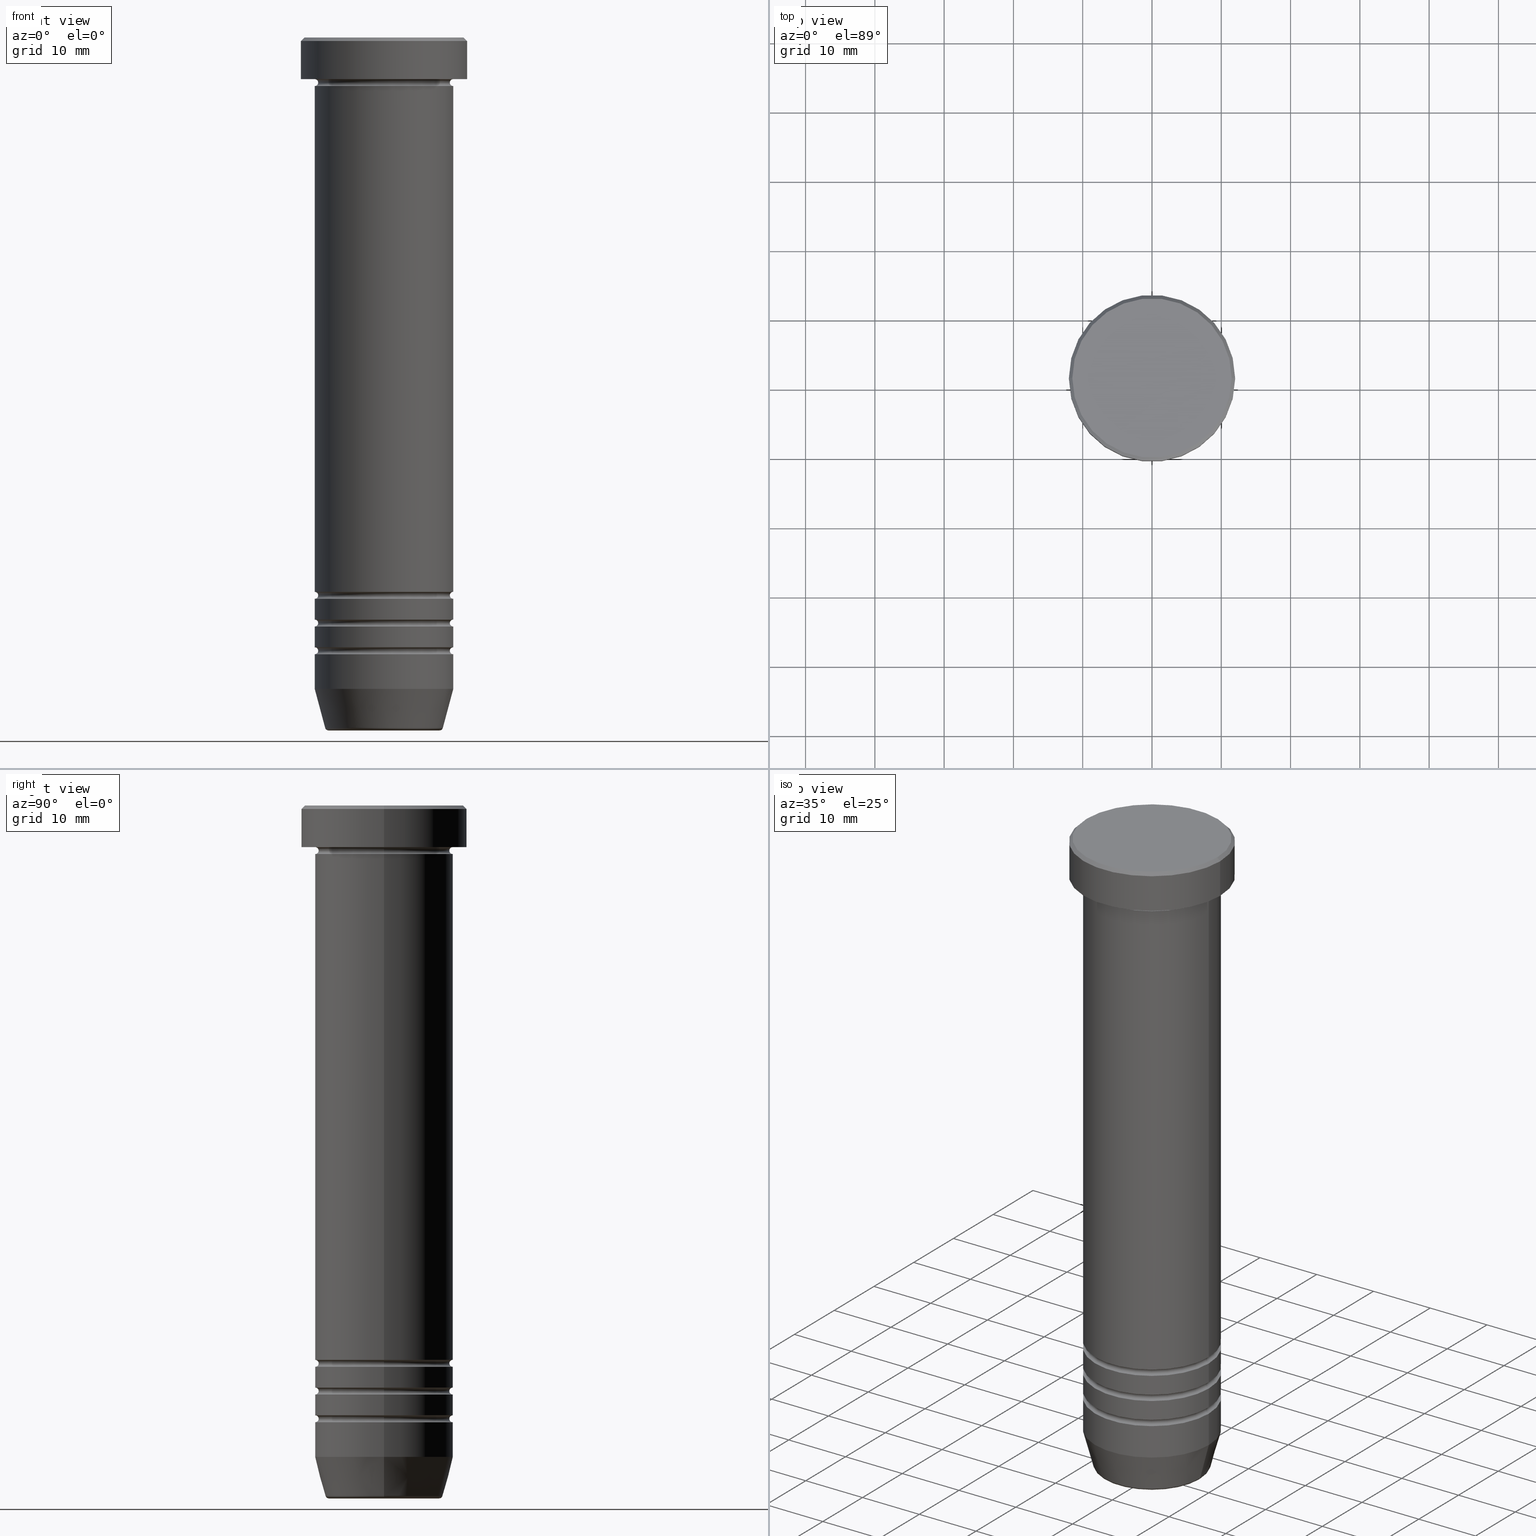
[diagram: canonical four-view strip — front | top / right | iso, engineering-drawing reading convention]
A machine part, canonical four-view strip (front | top / right | iso — engineering-drawing reading convention). The complete STEP part file that produces these views, byte-faithful:
ISO-10303-21;
HEADER;
FILE_DESCRIPTION (( 'STEP AP203' ),
    '1' );
FILE_NAME ('818b.STEP',
    '2024-01-02T21:48:29',
    ( '' ),
    ( '' ),
    'SwSTEP 2.0',
    'SolidWorks 2019',
    '' );
FILE_SCHEMA (( 'CONFIG_CONTROL_DESIGN' ));
ENDSEC;

DATA;
#1 = DIRECTION ( 'NONE',  ( 1.000000000000000000, 0.000000000000000000, 0.000000000000000000 ) ) ;
#2 = DIRECTION ( 'NONE',  ( -0.000000000000000000, -0.000000000000000000, 1.000000000000000000 ) ) ;
#3 = ORIENTED_EDGE ( 'NONE', *, *, #563, .F. ) ;
#4 = EDGE_CURVE ( 'NONE', #180, #565, #630, .T. ) ;
#5 = DIRECTION ( 'NONE',  ( 0.000000000000000000, 0.000000000000000000, -1.000000000000000000 ) ) ;
#6 = CYLINDRICAL_SURFACE ( 'NONE', #26, 9.999999999999996447 ) ;
#7 = ORIENTED_EDGE ( 'NONE', *, *, #59, .T. ) ;
#8 = CARTESIAN_POINT ( 'NONE',  ( -9.499999999999994671, 1.194030629168669075E-15, -84.49999999999998579 ) ) ;
#9 = AXIS2_PLACEMENT_3D ( 'NONE', #521, #704, #691 ) ;
#10 = AXIS2_PLACEMENT_3D ( 'NONE', #286, #756, #22 ) ;
#11 = EDGE_CURVE ( 'NONE', #565, #881, #824, .T. ) ;
#12 = VERTEX_POINT ( 'NONE', #38 ) ;
#13 = CARTESIAN_POINT ( 'NONE',  ( 0.000000000000000000, 0.000000000000000000, -88.50000000000000000 ) ) ;
#14 = FACE_OUTER_BOUND ( 'NONE', #949, .T. ) ;
#15 = ORIENTED_EDGE ( 'NONE', *, *, #147, .T. ) ;
#16 = DIRECTION ( 'NONE',  ( 0.000000000000000000, 0.000000000000000000, -1.000000000000000000 ) ) ;
#17 = CYLINDRICAL_SURFACE ( 'NONE', #67, 9.999999999999996447 ) ;
#18 = PRODUCT_DEFINITION_SHAPE ( 'NONE', 'NONE',  #63 ) ;
#19 = DIRECTION ( 'NONE',  ( 1.000000000000000000, 0.000000000000000000, 0.000000000000000000 ) ) ;
#20 = ADVANCED_FACE ( 'NONE', ( #210 ), #161, .F. ) ;
#21 = ORIENTED_EDGE ( 'NONE', *, *, #350, .T. ) ;
#22 = DIRECTION ( 'NONE',  ( 1.000000000000000000, 0.000000000000000000, 0.000000000000000000 ) ) ;
#23 = EDGE_CURVE ( 'NONE', #913, #881, #1009, .T. ) ;
#24 = DIRECTION ( 'NONE',  ( 1.000000000000000000, 0.000000000000000000, 0.000000000000000000 ) ) ;
#25 = TOROIDAL_SURFACE ( 'NONE', #9, 9.999999999999994671, 0.5000000000000000000 ) ;
#26 = AXIS2_PLACEMENT_3D ( 'NONE', #768, #591, #90 ) ;
#27 = CIRCLE ( 'NONE', #141, 9.999999999999992895 ) ;
#28 = LOCAL_TIME ( 22, 48, 29.00000000000000000, #429 ) ;
#29 = DIRECTION ( 'NONE',  ( -1.224646799147353207E-16, 1.000000000000000000, 0.000000000000000000 ) ) ;
#30 = ORIENTED_EDGE ( 'NONE', *, *, #923, .T. ) ;
#31 = ORIENTED_EDGE ( 'NONE', *, *, #1051, .F. ) ;
#32 = MANIFOLD_SOLID_BREP ( 'Zaoblit5', #54 ) ;
#33 = CIRCLE ( 'NONE', #337, 12.00000000000000000 ) ;
#34 = DIRECTION ( 'NONE',  ( 0.000000000000000000, 0.000000000000000000, -1.000000000000000000 ) ) ;
#35 = DIRECTION ( 'NONE',  ( 1.000000000000000000, 0.000000000000000000, 0.000000000000000000 ) ) ;
#36 = ORIENTED_EDGE ( 'NONE', *, *, #177, .F. ) ;
#37 = DIRECTION ( 'NONE',  ( -0.000000000000000000, -0.000000000000000000, 1.000000000000000000 ) ) ;
#38 = CARTESIAN_POINT ( 'NONE',  ( -10.00000000000000000, 1.224646799147353256E-15, -81.00000000000000000 ) ) ;
#39 = LINE ( 'NONE', #469, #281 ) ;
#40 = DIRECTION ( 'NONE',  ( 1.000000000000000000, 0.000000000000000000, 0.000000000000000000 ) ) ;
#41 = ORIENTED_EDGE ( 'NONE', *, *, #56, .T. ) ;
#42 = CARTESIAN_POINT ( 'NONE',  ( 10.00000000000000000, 1.224646799147353256E-15, -6.000000000000000000 ) ) ;
#43 = ORIENTED_EDGE ( 'NONE', *, *, #889, .T. ) ;
#44 = CARTESIAN_POINT ( 'NONE',  ( 9.999999999999994671, 1.224646799147352665E-15, -80.50000000000000000 ) ) ;
#45 = DIRECTION ( 'NONE',  ( 1.000000000000000000, 0.000000000000000000, 0.000000000000000000 ) ) ;
#46 = FACE_OUTER_BOUND ( 'NONE', #137, .T. ) ;
#47 = ORIENTED_EDGE ( 'NONE', *, *, #273, .T. ) ;
#48 = AXIS2_PLACEMENT_3D ( 'NONE', #1020, #848, #297 ) ;
#49 = AXIS2_PLACEMENT_3D ( 'NONE', #673, #832, #436 ) ;
#50 = EDGE_CURVE ( 'NONE', #490, #734, #143, .T. ) ;
#51 = VERTEX_POINT ( 'NONE', #656 ) ;
#52 = LOCAL_TIME ( 22, 48, 29.00000000000000000, #831 ) ;
#53 = DIRECTION ( 'NONE',  ( 1.000000000000000000, 0.000000000000000000, 0.000000000000000000 ) ) ;
#54 = CLOSED_SHELL ( 'NONE', ( #1061, #239, #639, #20, #764, #743, #522, #185, #280, #547, #396, #78, #512, #308, #814, #958, #212, #643, #229, #663, #345, #225, #1031, #593, #474, #331 ) ) ;
#55 = DIRECTION ( 'NONE',  ( 0.000000000000000000, 0.000000000000000000, -1.000000000000000000 ) ) ;
#56 = EDGE_CURVE ( 'NONE', #254, #840, #708, .T. ) ;
#57 = DIRECTION ( 'NONE',  ( 1.000000000000000000, 0.000000000000000000, 0.000000000000000000 ) ) ;
#58 = CARTESIAN_POINT ( 'NONE',  ( 9.999999999999996447, 0.000000000000000000, 0.000000000000000000 ) ) ;
#59 = EDGE_CURVE ( 'NONE', #75, #478, #295, .T. ) ;
#60 = CARTESIAN_POINT ( 'NONE',  ( 10.00000000000000000, 0.000000000000000000, -84.99999999999998579 ) ) ;
#61 = ORIENTED_EDGE ( 'NONE', *, *, #889, .F. ) ;
#62 = DIRECTION ( 'NONE',  ( 1.000000000000000000, 0.000000000000000000, 0.000000000000000000 ) ) ;
#63 = PRODUCT_DEFINITION ( 'NEZN�M�', '', #233, #479 ) ;
#64 = FACE_OUTER_BOUND ( 'NONE', #245, .T. ) ;
#65 = CARTESIAN_POINT ( 'NONE',  ( 10.00000000000000000, 0.000000000000000000, 0.000000000000000000 ) ) ;
#66 = EDGE_CURVE ( 'NONE', #749, #873, #283, .T. ) ;
#67 = AXIS2_PLACEMENT_3D ( 'NONE', #194, #375, #24 ) ;
#68 = TOROIDAL_SURFACE ( 'NONE', #553, 9.999999999999994671, 0.5000000000000000000 ) ;
#69 = CIRCLE ( 'NONE', #488, 9.999999999999992895 ) ;
#70 = DIRECTION ( 'NONE',  ( 1.000000000000000000, 0.000000000000000000, 0.000000000000000000 ) ) ;
#71 = LINE ( 'NONE', #151, #82 ) ;
#72 = ORIENTED_EDGE ( 'NONE', *, *, #585, .T. ) ;
#73 = PERSON_AND_ORGANIZATION ( #978, #300 ) ;
#74 = EDGE_CURVE ( 'NONE', #254, #478, #404, .T. ) ;
#75 = VERTEX_POINT ( 'NONE', #231 ) ;
#76 = CARTESIAN_POINT ( 'NONE',  ( 10.00000000000000000, 0.000000000000000000, -6.999999999999999112 ) ) ;
#77 = AXIS2_PLACEMENT_3D ( 'NONE', #909, #89, #819 ) ;
#78 = ADVANCED_FACE ( 'NONE', ( #217 ), #715, .T. ) ;
#79 = ORIENTED_EDGE ( 'NONE', *, *, #874, .F. ) ;
#80 = AXIS2_PLACEMENT_3D ( 'NONE', #782, #204, #35 ) ;
#81 = TOROIDAL_SURFACE ( 'NONE', #49, 9.999999999999994671, 0.5000000000000000000 ) ;
#82 = VECTOR ( 'NONE', #646, 1000.000000000000000 ) ;
#83 = DIRECTION ( 'NONE',  ( 1.000000000000000000, 0.000000000000000000, 0.000000000000000000 ) ) ;
#84 = AXIS2_PLACEMENT_3D ( 'NONE', #789, #302, #951 ) ;
#85 = DIRECTION ( 'NONE',  ( 1.000000000000000000, 0.000000000000000000, 0.000000000000000000 ) ) ;
#86 = EDGE_CURVE ( 'NONE', #674, #839, #33, .T. ) ;
#87 = ORIENTED_EDGE ( 'NONE', *, *, #288, .T. ) ;
#88 = PERSON_AND_ORGANIZATION_ROLE ( 'classification_officer' ) ;
#89 = DIRECTION ( 'NONE',  ( 0.000000000000000000, 0.000000000000000000, -1.000000000000000000 ) ) ;
#90 = DIRECTION ( 'NONE',  ( 1.000000000000000000, 0.000000000000000000, 0.000000000000000000 ) ) ;
#91 = EDGE_LOOP ( 'NONE', ( #1048, #592, #633, #240 ) ) ;
#92 = ORIENTED_EDGE ( 'NONE', *, *, #350, .F. ) ;
#93 = PERSON_AND_ORGANIZATION ( #978, #300 ) ;
#94 = EDGE_CURVE ( 'NONE', #387, #873, #635, .T. ) ;
#95 = DIRECTION ( 'NONE',  ( 1.000000000000000000, 0.000000000000000000, 0.000000000000000000 ) ) ;
#96 = EDGE_LOOP ( 'NONE', ( #568, #47, #982, #613 ) ) ;
#97 = ORIENTED_EDGE ( 'NONE', *, *, #835, .T. ) ;
#98 = DIRECTION ( 'NONE',  ( 1.000000000000000000, 0.000000000000000000, 0.000000000000000000 ) ) ;
#99 = CIRCLE ( 'NONE', #550, 10.00000000000000000 ) ;
#100 = AXIS2_PLACEMENT_3D ( 'NONE', #1026, #710, #627 ) ;
#101 = APPROVAL_PERSON_ORGANIZATION ( #816, #369, #899 ) ;
#102 = DIRECTION ( 'NONE',  ( -1.000000000000000000, 0.000000000000000000, 0.000000000000000000 ) ) ;
#103 = ORIENTED_EDGE ( 'NONE', *, *, #580, .T. ) ;
#104 = CARTESIAN_POINT ( 'NONE',  ( 0.000000000000000000, 0.000000000000000000, 0.000000000000000000 ) ) ;
#105 = DIRECTION ( 'NONE',  ( 1.000000000000000000, 0.000000000000000000, 0.000000000000000000 ) ) ;
#106 = ORIENTED_EDGE ( 'NONE', *, *, #131, .T. ) ;
#107 = DIRECTION ( 'NONE',  ( -1.000000000000000000, -1.224646799147353454E-16, 0.000000000000000000 ) ) ;
#108 = EDGE_LOOP ( 'NONE', ( #166, #122, #830, #383 ) ) ;
#109 = DIRECTION ( 'NONE',  ( 0.000000000000000000, 0.000000000000000000, -1.000000000000000000 ) ) ;
#110 = DIRECTION ( 'NONE',  ( 1.000000000000000000, 0.000000000000000000, 0.000000000000000000 ) ) ;
#111 = CARTESIAN_POINT ( 'NONE',  ( 0.000000000000000000, 0.000000000000000000, -99.99999999999998579 ) ) ;
#112 = ORIENTED_EDGE ( 'NONE', *, *, #50, .F. ) ;
#113 = CARTESIAN_POINT ( 'NONE',  ( 9.499999999999994671, 0.000000000000000000, -88.50000000000000000 ) ) ;
#114 = CIRCLE ( 'NONE', #205, 12.00000000000000000 ) ;
#115 = DIRECTION ( 'NONE',  ( -0.000000000000000000, -0.000000000000000000, 1.000000000000000000 ) ) ;
#116 = VECTOR ( 'NONE', #802, 1000.000000000000000 ) ;
#117 = VECTOR ( 'NONE', #501, 1000.000000000000000 ) ;
#118 = AXIS2_PLACEMENT_3D ( 'NONE', #678, #919, #997 ) ;
#119 = ORIENTED_EDGE ( 'NONE', *, *, #320, .F. ) ;
#120 = DIRECTION ( 'NONE',  ( 0.000000000000000000, 0.000000000000000000, -1.000000000000000000 ) ) ;
#121 = ORIENTED_EDGE ( 'NONE', *, *, #74, .F. ) ;
#122 = ORIENTED_EDGE ( 'NONE', *, *, #1054, .T. ) ;
#123 = EDGE_CURVE ( 'NONE', #1043, #179, #313, .T. ) ;
#124 = DIRECTION ( 'NONE',  ( -1.000000000000000000, 0.000000000000000000, 0.000000000000000000 ) ) ;
#125 = DIRECTION ( 'NONE',  ( 0.000000000000000000, 0.000000000000000000, -1.000000000000000000 ) ) ;
#126 = CARTESIAN_POINT ( 'NONE',  ( 0.000000000000000000, 0.000000000000000000, -84.49999999999998579 ) ) ;
#127 = EDGE_LOOP ( 'NONE', ( #249, #906, #43, #596 ) ) ;
#128 = DIRECTION ( 'NONE',  ( -0.000000000000000000, -0.000000000000000000, 1.000000000000000000 ) ) ;
#129 = CARTESIAN_POINT ( 'NONE',  ( 8.008641351423779753, 0.000000000000000000, -99.49999999999998579 ) ) ;
#130 = DIRECTION ( 'NONE',  ( 1.000000000000000000, 0.000000000000000000, 0.000000000000000000 ) ) ;
#131 = EDGE_CURVE ( 'NONE', #986, #626, #305, .T. ) ;
#132 = DIRECTION ( 'NONE',  ( -0.000000000000000000, -1.000000000000000000, -0.000000000000000000 ) ) ;
#133 = ORIENTED_EDGE ( 'NONE', *, *, #966, .T. ) ;
#134 = CARTESIAN_POINT ( 'NONE',  ( 8.392304845413260495, 0.000000000000000000, -99.99999999999998579 ) ) ;
#135 = CARTESIAN_POINT ( 'NONE',  ( -9.999999999999992895, 1.224646799147352665E-15, -88.00000000000000000 ) ) ;
#136 = DIRECTION ( 'NONE',  ( 1.000000000000000000, 0.000000000000000000, 0.000000000000000000 ) ) ;
#137 = EDGE_LOOP ( 'NONE', ( #312, #431, #647, #165 ) ) ;
#138 = AXIS2_PLACEMENT_3D ( 'NONE', #905, #144, #1042 ) ;
#139 = DIRECTION ( 'NONE',  ( -0.000000000000000000, -0.000000000000000000, 1.000000000000000000 ) ) ;
#140 = EDGE_CURVE ( 'NONE', #179, #290, #736, .T. ) ;
#141 = AXIS2_PLACEMENT_3D ( 'NONE', #276, #994, #520 ) ;
#142 = CARTESIAN_POINT ( 'NONE',  ( 0.000000000000000000, 0.000000000000000000, -25.00000000000000000 ) ) ;
#143 = CIRCLE ( 'NONE', #728, 10.00000000000000000 ) ;
#144 = DIRECTION ( 'NONE',  ( -0.000000000000000000, -0.000000000000000000, 1.000000000000000000 ) ) ;
#145 = VERTEX_POINT ( 'NONE', #875 ) ;
#146 = DIRECTION ( 'NONE',  ( 1.000000000000000000, 0.000000000000000000, 0.000000000000000000 ) ) ;
#147 = EDGE_CURVE ( 'NONE', #525, #51, #739, .T. ) ;
#148 = DIRECTION ( 'NONE',  ( -0.000000000000000000, -0.000000000000000000, 1.000000000000000000 ) ) ;
#149 = CARTESIAN_POINT ( 'NONE',  ( 9.999999999999994671, 0.000000000000000000, -84.49999999999998579 ) ) ;
#150 = EDGE_LOOP ( 'NONE', ( #567, #198, #356, #666 ) ) ;
#151 = CARTESIAN_POINT ( 'NONE',  ( -9.999999999999996447, 1.224646799147352862E-15, 0.000000000000000000 ) ) ;
#152 = DIRECTION ( 'NONE',  ( 1.000000000000000000, 0.000000000000000000, 0.000000000000000000 ) ) ;
#153 = EDGE_LOOP ( 'NONE', ( #3, #451, #933, #460 ) ) ;
#154 = TOROIDAL_SURFACE ( 'NONE', #987, 9.999999999999994671, 0.5000000000000000000 ) ;
#155 = TOROIDAL_SURFACE ( 'NONE', #263, 10.00000000000000000, 0.5000000000000000000 ) ;
#156 = APPLICATION_PROTOCOL_DEFINITION ( 'international standard', 'config_control_design', 1994, #900 ) ;
#157 = ORIENTED_EDGE ( 'NONE', *, *, #936, .T. ) ;
#158 =( GEOMETRIC_REPRESENTATION_CONTEXT ( 3 ) GLOBAL_UNCERTAINTY_ASSIGNED_CONTEXT ( ( #722 ) ) GLOBAL_UNIT_ASSIGNED_CONTEXT ( ( #811, #483, #573 ) ) REPRESENTATION_CONTEXT ( 'NONE', 'WORKASPACE' ) );
#159 = VERTEX_POINT ( 'NONE', #76 ) ;
#160 = MECHANICAL_CONTEXT ( 'NONE', #900, 'mechanical' ) ;
#161 = TOROIDAL_SURFACE ( 'NONE', #605, 9.999999999999994671, 0.5000000000000000000 ) ;
#162 = EDGE_CURVE ( 'NONE', #290, #972, #1037, .T. ) ;
#163 = ORIENTED_EDGE ( 'NONE', *, *, #822, .T. ) ;
#164 = PERSON_AND_ORGANIZATION_ROLE ( 'creator' ) ;
#165 = ORIENTED_EDGE ( 'NONE', *, *, #787, .F. ) ;
#166 = ORIENTED_EDGE ( 'NONE', *, *, #931, .T. ) ;
#167 = CARTESIAN_POINT ( 'NONE',  ( 0.000000000000000000, 0.000000000000000000, -6.000000000000000000 ) ) ;
#168 = VECTOR ( 'NONE', #548, 1000.000000000000000 ) ;
#169 = CARTESIAN_POINT ( 'NONE',  ( 0.000000000000000000, 0.000000000000000000, -6.499999999999999112 ) ) ;
#170 = AXIS2_PLACEMENT_3D ( 'NONE', #405, #307, #136 ) ;
#171 = ORIENTED_EDGE ( 'NONE', *, *, #195, .T. ) ;
#172 = CIRCLE ( 'NONE', #778, 0.5000000000000004441 ) ;
#173 = COORDINATED_UNIVERSAL_TIME_OFFSET ( 1, 0, .AHEAD. ) ;
#174 = DIRECTION ( 'NONE',  ( -0.000000000000000000, -0.000000000000000000, 1.000000000000000000 ) ) ;
#175 = FACE_OUTER_BOUND ( 'NONE', #893, .T. ) ;
#176 = ORIENTED_EDGE ( 'NONE', *, *, #874, .T. ) ;
#177 = EDGE_CURVE ( 'NONE', #839, #674, #114, .T. ) ;
#178 = DIRECTION ( 'NONE',  ( 0.000000000000000000, 0.000000000000000000, -1.000000000000000000 ) ) ;
#179 = VERTEX_POINT ( 'NONE', #984 ) ;
#180 = VERTEX_POINT ( 'NONE', #584 ) ;
#181 = CARTESIAN_POINT ( 'NONE',  ( 0.000000000000000000, 0.000000000000000000, -6.500000000000000888 ) ) ;
#182 = DIRECTION ( 'NONE',  ( -0.000000000000000000, -0.000000000000000000, 1.000000000000000000 ) ) ;
#183 = EDGE_LOOP ( 'NONE', ( #784, #262, #619, #92 ) ) ;
#184 = FACE_OUTER_BOUND ( 'NONE', #777, .T. ) ;
#185 = ADVANCED_FACE ( 'NONE', ( #251 ), #1058, .T. ) ;
#186 = CIRCLE ( 'NONE', #793, 9.499999999999994671 ) ;
#187 = AXIS2_PLACEMENT_3D ( 'NONE', #676, #916, #95 ) ;
#188 = CONICAL_SURFACE ( 'NONE', #588, 8.392304845413260495, 0.2617993877991502960 ) ;
#189 = ORIENTED_EDGE ( 'NONE', *, *, #177, .T. ) ;
#190 = CARTESIAN_POINT ( 'NONE',  ( 0.000000000000000000, 0.000000000000000000, -99.49999999999998579 ) ) ;
#191 = ORIENTED_EDGE ( 'NONE', *, *, #732, .F. ) ;
#192 = PRODUCT ( '818b', '818b', '', ( #160 ) ) ;
#193 = CARTESIAN_POINT ( 'NONE',  ( 10.00000000000000000, 0.000000000000000000, -6.499999999999999112 ) ) ;
#194 = CARTESIAN_POINT ( 'NONE',  ( 0.000000000000000000, 0.000000000000000000, 0.000000000000000000 ) ) ;
#195 = EDGE_CURVE ( 'NONE', #734, #490, #358, .T. ) ;
#196 = DIRECTION ( 'NONE',  ( 1.000000000000000000, 0.000000000000000000, 0.000000000000000000 ) ) ;
#197 = ORIENTED_EDGE ( 'NONE', *, *, #732, .T. ) ;
#198 = ORIENTED_EDGE ( 'NONE', *, *, #563, .T. ) ;
#199 = LINE ( 'NONE', #624, #552 ) ;
#200 = EDGE_CURVE ( 'NONE', #840, #939, #99, .T. ) ;
#201 = DIRECTION ( 'NONE',  ( 0.000000000000000000, 0.000000000000000000, -1.000000000000000000 ) ) ;
#202 = ORIENTED_EDGE ( 'NONE', *, *, #59, .F. ) ;
#203 = DIRECTION ( 'NONE',  ( -0.000000000000000000, -0.000000000000000000, 1.000000000000000000 ) ) ;
#204 = DIRECTION ( 'NONE',  ( -0.000000000000000000, -0.000000000000000000, 1.000000000000000000 ) ) ;
#205 = AXIS2_PLACEMENT_3D ( 'NONE', #904, #813, #257 ) ;
#206 = AXIS2_PLACEMENT_3D ( 'NONE', #771, #532, #34 ) ;
#207 = CIRCLE ( 'NONE', #910, 0.5000000000000004441 ) ;
#208 = CARTESIAN_POINT ( 'NONE',  ( 0.000000000000000000, 0.000000000000000000, -6.500000000000000888 ) ) ;
#209 = ORIENTED_EDGE ( 'NONE', *, *, #752, .F. ) ;
#210 = FACE_OUTER_BOUND ( 'NONE', #91, .T. ) ;
#211 = CARTESIAN_POINT ( 'NONE',  ( 0.000000000000000000, 0.000000000000000000, -80.00000000000000000 ) ) ;
#212 = ADVANCED_FACE ( 'NONE', ( #497 ), #664, .F. ) ;
#213 = CARTESIAN_POINT ( 'NONE',  ( -10.00000000000000000, 1.224646799147353256E-15, -94.00000000000000000 ) ) ;
#214 = ORIENTED_EDGE ( 'NONE', *, *, #371, .F. ) ;
#215 = CARTESIAN_POINT ( 'NONE',  ( -9.999999999999998224, 1.224646799147353059E-15, -83.99999999999998579 ) ) ;
#216 = EDGE_LOOP ( 'NONE', ( #267, #87, #398, #902 ) ) ;
#217 = FACE_OUTER_BOUND ( 'NONE', #714, .T. ) ;
#218 = DIRECTION ( 'NONE',  ( 1.000000000000000000, 0.000000000000000000, 0.000000000000000000 ) ) ;
#219 = FACE_OUTER_BOUND ( 'NONE', #1059, .T. ) ;
#220 = ORIENTED_EDGE ( 'NONE', *, *, #259, .F. ) ;
#221 = EDGE_LOOP ( 'NONE', ( #851, #72, #641, #852 ) ) ;
#222 = CARTESIAN_POINT ( 'NONE',  ( 11.50000000000000178, 1.408343819019456373E-15, 0.000000000000000000 ) ) ;
#223 = DIRECTION ( 'NONE',  ( 1.000000000000000000, 0.000000000000000000, 0.000000000000000000 ) ) ;
#224 = DIRECTION ( 'NONE',  ( -0.000000000000000000, -0.000000000000000000, 1.000000000000000000 ) ) ;
#225 = ADVANCED_FACE ( 'NONE', ( #504 ), #684, .F. ) ;
#226 = EDGE_LOOP ( 'NONE', ( #843, #409, #779, #408 ) ) ;
#227 = CIRCLE ( 'NONE', #724, 12.00000000000000000 ) ;
#228 = TOROIDAL_SURFACE ( 'NONE', #640, 8.008641351423779753, 0.5000000000000000000 ) ;
#229 = ADVANCED_FACE ( 'NONE', ( #828 ), #935, .T. ) ;
#230 = AXIS2_PLACEMENT_3D ( 'NONE', #850, #1013, #19 ) ;
#231 = CARTESIAN_POINT ( 'NONE',  ( 8.491604264568310967, 0.000000000000000000, -99.62940952255125637 ) ) ;
#232 = AXIS2_PLACEMENT_3D ( 'NONE', #237, #703, #45 ) ;
#233 = PRODUCT_DEFINITION_FORMATION_WITH_SPECIFIED_SOURCE ( 'LIBOVOLN�', '', #192, .NOT_KNOWN. ) ;
#234 = CARTESIAN_POINT ( 'NONE',  ( -9.999999999999994671, 0.000000000000000000, -88.50000000000000000 ) ) ;
#235 = CARTESIAN_POINT ( 'NONE',  ( 0.000000000000000000, 10.00000000000000000, -25.00000000000000000 ) ) ;
#236 = ORIENTED_EDGE ( 'NONE', *, *, #443, .T. ) ;
#237 = CARTESIAN_POINT ( 'NONE',  ( 0.000000000000000000, 0.000000000000000000, -88.50000000000000000 ) ) ;
#238 = CARTESIAN_POINT ( 'NONE',  ( 0.000000000000000000, 0.000000000000000000, 0.000000000000000000 ) ) ;
#239 = ADVANCED_FACE ( 'NONE', ( #46 ), #154, .F. ) ;
#240 = ORIENTED_EDGE ( 'NONE', *, *, #441, .F. ) ;
#241 = EDGE_CURVE ( 'NONE', #626, #437, #1021, .T. ) ;
#242 = CALENDAR_DATE ( 2024, 2, 1 ) ;
#243 = AXIS2_PLACEMENT_3D ( 'NONE', #293, #528, #1017 ) ;
#244 = AXIS2_PLACEMENT_3D ( 'NONE', #268, #861, #841 ) ;
#245 = EDGE_LOOP ( 'NONE', ( #31, #677, #530, #541 ) ) ;
#246 = PERSON_AND_ORGANIZATION ( #978, #300 ) ;
#247 = EDGE_CURVE ( 'NONE', #652, #458, #942, .T. ) ;
#248 = ORIENTED_EDGE ( 'NONE', *, *, #270, .F. ) ;
#249 = ORIENTED_EDGE ( 'NONE', *, *, #200, .T. ) ;
#250 = EDGE_CURVE ( 'NONE', #693, #12, #199, .T. ) ;
#251 = FACE_OUTER_BOUND ( 'NONE', #842, .T. ) ;
#252 = EDGE_CURVE ( 'NONE', #12, #565, #959, .T. ) ;
#253 = FACE_OUTER_BOUND ( 'NONE', #226, .T. ) ;
#254 = VERTEX_POINT ( 'NONE', #213 ) ;
#255 = PERSON_AND_ORGANIZATION_ROLE ( 'design_owner' ) ;
#256 = CC_DESIGN_PERSON_AND_ORGANIZATION_ASSIGNMENT ( #413, #164, ( #63 ) ) ;
#257 = DIRECTION ( 'NONE',  ( 1.000000000000000000, 0.000000000000000000, 0.000000000000000000 ) ) ;
#258 = AXIS2_PLACEMENT_3D ( 'NONE', #480, #1029, #800 ) ;
#259 = EDGE_CURVE ( 'NONE', #812, #159, #471, .T. ) ;
#260 = CARTESIAN_POINT ( 'NONE',  ( 0.000000000000000000, 0.000000000000000000, -80.50000000000000000 ) ) ;
#261 = CIRCLE ( 'NONE', #277, 9.999999999999992895 ) ;
#262 = ORIENTED_EDGE ( 'NONE', *, *, #11, .T. ) ;
#263 = AXIS2_PLACEMENT_3D ( 'NONE', #181, #609, #124 ) ;
#264 = CIRCLE ( 'NONE', #1041, 0.5000000000000004441 ) ;
#265 = VECTOR ( 'NONE', #1018, 1000.000000000000000 ) ;
#266 = DIRECTION ( 'NONE',  ( 1.000000000000000000, 0.000000000000000000, 0.000000000000000000 ) ) ;
#267 = ORIENTED_EDGE ( 'NONE', *, *, #250, .F. ) ;
#268 = CARTESIAN_POINT ( 'NONE',  ( -9.999999999999994671, 0.000000000000000000, -84.49999999999998579 ) ) ;
#269 = FACE_OUTER_BOUND ( 'NONE', #150, .T. ) ;
#270 = EDGE_CURVE ( 'NONE', #939, #840, #599, .T. ) ;
#271 = ORIENTED_EDGE ( 'NONE', *, *, #371, .T. ) ;
#272 = DIRECTION ( 'NONE',  ( -1.000000000000000000, 0.000000000000000000, 0.000000000000000000 ) ) ;
#273 = EDGE_CURVE ( 'NONE', #574, #812, #772, .T. ) ;
#274 = CARTESIAN_POINT ( 'NONE',  ( 0.000000000000000000, 0.000000000000000000, -99.99999999999998579 ) ) ;
#275 = EDGE_LOOP ( 'NONE', ( #607, #523, #157, #833 ) ) ;
#276 = CARTESIAN_POINT ( 'NONE',  ( 0.000000000000000000, 0.000000000000000000, -80.00000000000000000 ) ) ;
#277 = AXIS2_PLACEMENT_3D ( 'NONE', #477, #470, #648 ) ;
#278 = DIRECTION ( 'NONE',  ( -0.000000000000000000, -1.000000000000000000, -0.000000000000000000 ) ) ;
#279 = VECTOR ( 'NONE', #926, 1000.000000000000000 ) ;
#280 = ADVANCED_FACE ( 'NONE', ( #767 ), #17, .T. ) ;
#281 = VECTOR ( 'NONE', #310, 1000.000000000000000 ) ;
#282 = ORIENTED_EDGE ( 'NONE', *, *, #11, .F. ) ;
#283 = CIRCLE ( 'NONE', #422, 0.5000000000000004441 ) ;
#284 = FACE_OUTER_BOUND ( 'NONE', #1028, .T. ) ;
#285 = ORIENTED_EDGE ( 'NONE', *, *, #66, .T. ) ;
#286 = CARTESIAN_POINT ( 'NONE',  ( 0.000000000000000000, 0.000000000000000000, 0.000000000000000000 ) ) ;
#287 = CARTESIAN_POINT ( 'NONE',  ( 0.000000000000000000, 0.000000000000000000, -80.50000000000000000 ) ) ;
#288 = EDGE_CURVE ( 'NONE', #693, #180, #669, .T. ) ;
#289 = DIRECTION ( 'NONE',  ( -0.000000000000000000, -0.000000000000000000, 1.000000000000000000 ) ) ;
#290 = VERTEX_POINT ( 'NONE', #941 ) ;
#291 = VERTEX_POINT ( 'NONE', #540 ) ;
#292 = CARTESIAN_POINT ( 'NONE',  ( -10.00000000000000000, 1.224646799147353256E-15, -6.499999999999999112 ) ) ;
#293 = CARTESIAN_POINT ( 'NONE',  ( 0.000000000000000000, 0.000000000000000000, -81.00000000000000000 ) ) ;
#294 = CARTESIAN_POINT ( 'NONE',  ( -10.00000000000000000, 0.000000000000000000, -6.500000000000000888 ) ) ;
#295 = LINE ( 'NONE', #134, #744 ) ;
#296 = DIRECTION ( 'NONE',  ( -0.000000000000000000, -0.000000000000000000, 1.000000000000000000 ) ) ;
#297 = DIRECTION ( 'NONE',  ( 1.000000000000000000, 0.000000000000000000, 0.000000000000000000 ) ) ;
#298 = CIRCLE ( 'NONE', #907, 0.5000000000000004441 ) ;
#299 = AXIS2_PLACEMENT_3D ( 'NONE', #748, #2, #872 ) ;
#300 = ORGANIZATION ( 'NEUR�EN�', 'NEUR�EN�', '' ) ;
#301 = DIRECTION ( 'NONE',  ( -1.000000000000000000, 0.000000000000000000, -0.000000000000000000 ) ) ;
#302 = DIRECTION ( 'NONE',  ( -0.000000000000000000, -0.000000000000000000, 1.000000000000000000 ) ) ;
#303 = DIRECTION ( 'NONE',  ( -0.000000000000000000, -1.000000000000000000, -0.000000000000000000 ) ) ;
#304 = DIRECTION ( 'NONE',  ( -0.000000000000000000, -0.000000000000000000, 1.000000000000000000 ) ) ;
#305 = LINE ( 'NONE', #955, #355 ) ;
#306 = CYLINDRICAL_SURFACE ( 'NONE', #473, 12.00000000000000000 ) ;
#307 = DIRECTION ( 'NONE',  ( -0.000000000000000000, -0.000000000000000000, 1.000000000000000000 ) ) ;
#308 = ADVANCED_FACE ( 'NONE', ( #219 ), #867, .T. ) ;
#309 = ORIENTED_EDGE ( 'NONE', *, *, #435, .T. ) ;
#310 = DIRECTION ( 'NONE',  ( -0.000000000000000000, -0.000000000000000000, 1.000000000000000000 ) ) ;
#311 = DIRECTION ( 'NONE',  ( -1.000000000000000000, 1.224646799147353454E-16, 0.000000000000000000 ) ) ;
#312 = ORIENTED_EDGE ( 'NONE', *, *, #844, .F. ) ;
#313 = CIRCLE ( 'NONE', #891, 11.50000000000000178 ) ;
#314 = CIRCLE ( 'NONE', #400, 10.00000000000000000 ) ;
#315 = CIRCLE ( 'NONE', #230, 10.00000000000000000 ) ;
#316 = VECTOR ( 'NONE', #148, 1000.000000000000000 ) ;
#317 = DIRECTION ( 'NONE',  ( -0.000000000000000000, -0.000000000000000000, 1.000000000000000000 ) ) ;
#318 = DIRECTION ( 'NONE',  ( -0.000000000000000000, -0.000000000000000000, 1.000000000000000000 ) ) ;
#319 = DIRECTION ( 'NONE',  ( 1.000000000000000000, 0.000000000000000000, 0.000000000000000000 ) ) ;
#320 = EDGE_CURVE ( 'NONE', #972, #290, #227, .T. ) ;
#321 = CARTESIAN_POINT ( 'NONE',  ( 0.000000000000000000, 0.000000000000000000, 0.000000000000000000 ) ) ;
#322 = ORIENTED_EDGE ( 'NONE', *, *, #466, .F. ) ;
#323 = CARTESIAN_POINT ( 'NONE',  ( 0.000000000000000000, 0.000000000000000000, -84.49999999999998579 ) ) ;
#324 = CIRCLE ( 'NONE', #472, 0.5000000000000004441 ) ;
#325 = ORIENTED_EDGE ( 'NONE', *, *, #435, .F. ) ;
#326 = CIRCLE ( 'NONE', #364, 0.5000000000000004441 ) ;
#327 = APPROVAL_STATUS ( 'not_yet_approved' ) ;
#328 = CARTESIAN_POINT ( 'NONE',  ( 0.000000000000000000, 0.000000000000000000, -0.5000000000000091038 ) ) ;
#329 = ORIENTED_EDGE ( 'NONE', *, *, #810, .F. ) ;
#330 = SHAPE_DEFINITION_REPRESENTATION ( #18, #650 ) ;
#331 = ADVANCED_FACE ( 'NONE', ( #361 ), #817, .F. ) ;
#332 = CARTESIAN_POINT ( 'NONE',  ( 0.000000000000000000, 0.000000000000000000, -89.00000000000000000 ) ) ;
#333 = FACE_OUTER_BOUND ( 'NONE', #353, .T. ) ;
#334 = ORIENTED_EDGE ( 'NONE', *, *, #822, .F. ) ;
#335 = DIRECTION ( 'NONE',  ( -1.000000000000000000, 0.000000000000000000, 0.000000000000000000 ) ) ;
#336 = DIRECTION ( 'NONE',  ( -1.000000000000000000, 1.224646799147353454E-16, 0.000000000000000000 ) ) ;
#337 = AXIS2_PLACEMENT_3D ( 'NONE', #883, #870, #146 ) ;
#338 = CARTESIAN_POINT ( 'NONE',  ( 9.999999999999994671, 1.224646799147352665E-15, -88.50000000000000000 ) ) ;
#339 = AXIS2_PLACEMENT_3D ( 'NONE', #1001, #439, #130 ) ;
#340 = ORIENTED_EDGE ( 'NONE', *, *, #66, .F. ) ;
#341 = AXIS2_PLACEMENT_3D ( 'NONE', #111, #542, #459 ) ;
#342 = AXIS2_PLACEMENT_3D ( 'NONE', #489, #1047, #411 ) ;
#343 = DIRECTION ( 'NONE',  ( 1.224646799147353207E-16, 1.000000000000000000, 0.000000000000000000 ) ) ;
#344 = DIRECTION ( 'NONE',  ( 1.224646799147353207E-16, 1.000000000000000000, 0.000000000000000000 ) ) ;
#345 = ADVANCED_FACE ( 'NONE', ( #954 ), #25, .F. ) ;
#346 = ORIENTED_EDGE ( 'NONE', *, *, #585, .F. ) ;
#347 = FACE_OUTER_BOUND ( 'NONE', #496, .T. ) ;
#348 = DIRECTION ( 'NONE',  ( -0.000000000000000000, -0.000000000000000000, 1.000000000000000000 ) ) ;
#349 = ORIENTED_EDGE ( 'NONE', *, *, #86, .F. ) ;
#350 = EDGE_CURVE ( 'NONE', #12, #913, #621, .T. ) ;
#351 = DIRECTION ( 'NONE',  ( 1.000000000000000000, 0.000000000000000000, 0.000000000000000000 ) ) ;
#352 = DIRECTION ( 'NONE',  ( 0.000000000000000000, 0.000000000000000000, -1.000000000000000000 ) ) ;
#353 = EDGE_LOOP ( 'NONE', ( #611, #680, #745, #79 ) ) ;
#354 = DIRECTION ( 'NONE',  ( -0.000000000000000000, -0.000000000000000000, 1.000000000000000000 ) ) ;
#355 = VECTOR ( 'NONE', #394, 1000.000000000000000 ) ;
#356 = ORIENTED_EDGE ( 'NONE', *, *, #835, .F. ) ;
#357 = EDGE_CURVE ( 'NONE', #737, #734, #298, .T. ) ;
#358 = CIRCLE ( 'NONE', #973, 10.00000000000000000 ) ;
#359 = DIRECTION ( 'NONE',  ( -0.000000000000000000, -0.000000000000000000, 1.000000000000000000 ) ) ;
#360 = TOROIDAL_SURFACE ( 'NONE', #499, 10.00000000000000000, 0.5000000000000000000 ) ;
#361 = FACE_OUTER_BOUND ( 'NONE', #755, .T. ) ;
#362 = AXIS2_PLACEMENT_3D ( 'NONE', #461, #631, #223 ) ;
#363 = EDGE_CURVE ( 'NONE', #986, #749, #637, .T. ) ;
#364 = AXIS2_PLACEMENT_3D ( 'NONE', #129, #636, #946 ) ;
#365 = SECURITY_CLASSIFICATION ( '', '', #569 ) ;
#366 = FACE_OUTER_BOUND ( 'NONE', #1050, .T. ) ;
#367 = ORIENTED_EDGE ( 'NONE', *, *, #554, .T. ) ;
#368 = DIRECTION ( 'NONE',  ( -1.224646799147353207E-16, 1.000000000000000000, 0.000000000000000000 ) ) ;
#369 = APPROVAL ( #746, 'NEUR�EN�' ) ;
#370 = DIRECTION ( 'NONE',  ( 1.000000000000000000, 0.000000000000000000, 0.000000000000000000 ) ) ;
#371 = EDGE_CURVE ( 'NONE', #986, #387, #709, .T. ) ;
#372 = DIRECTION ( 'NONE',  ( 1.000000000000000000, 0.000000000000000000, 0.000000000000000000 ) ) ;
#373 = DIRECTION ( 'NONE',  ( 1.000000000000000000, 0.000000000000000000, 0.000000000000000000 ) ) ;
#374 = DIRECTION ( 'NONE',  ( -0.000000000000000000, -0.000000000000000000, 1.000000000000000000 ) ) ;
#375 = DIRECTION ( 'NONE',  ( -0.000000000000000000, -0.000000000000000000, 1.000000000000000000 ) ) ;
#376 = VERTEX_POINT ( 'NONE', #560 ) ;
#377 = ORIENTED_EDGE ( 'NONE', *, *, #506, .T. ) ;
#378 = FACE_BOUND ( 'NONE', #695, .T. ) ;
#379 = CARTESIAN_POINT ( 'NONE',  ( 0.000000000000000000, 0.000000000000000000, -6.000000000000000000 ) ) ;
#380 = FACE_OUTER_BOUND ( 'NONE', #917, .T. ) ;
#381 = CARTESIAN_POINT ( 'NONE',  ( -10.00000000000000000, 1.224646799147353256E-15, 0.000000000000000000 ) ) ;
#382 = AXIS2_PLACEMENT_3D ( 'NONE', #235, #885, #638 ) ;
#383 = ORIENTED_EDGE ( 'NONE', *, *, #1012, .F. ) ;
#384 = AXIS2_PLACEMENT_3D ( 'NONE', #679, #348, #196 ) ;
#385 = AXIS2_PLACEMENT_3D ( 'NONE', #729, #807, #895 ) ;
#386 = LOCAL_TIME ( 22, 48, 29.00000000000000000, #173 ) ;
#387 = VERTEX_POINT ( 'NONE', #716 ) ;
#388 = EDGE_CURVE ( 'NONE', #478, #254, #314, .T. ) ;
#389 = FACE_OUTER_BOUND ( 'NONE', #440, .T. ) ;
#390 = DIRECTION ( 'NONE',  ( 1.000000000000000000, 0.000000000000000000, 0.000000000000000000 ) ) ;
#391 = ORIENTED_EDGE ( 'NONE', *, *, #466, .T. ) ;
#392 = DIRECTION ( 'NONE',  ( 0.000000000000000000, 0.000000000000000000, -1.000000000000000000 ) ) ;
#393 = LINE ( 'NONE', #65, #416 ) ;
#394 = DIRECTION ( 'NONE',  ( -0.000000000000000000, -0.000000000000000000, 1.000000000000000000 ) ) ;
#395 = ORIENTED_EDGE ( 'NONE', *, *, #455, .T. ) ;
#396 = ADVANCED_FACE ( 'NONE', ( #985 ), #957, .T. ) ;
#397 = CARTESIAN_POINT ( 'NONE',  ( 10.00000000000000000, 0.000000000000000000, -25.00000000000000000 ) ) ;
#398 = ORIENTED_EDGE ( 'NONE', *, *, #4, .T. ) ;
#399 = CC_DESIGN_PERSON_AND_ORGANIZATION_ASSIGNMENT ( #421, #915, ( #233 ) ) ;
#400 = AXIS2_PLACEMENT_3D ( 'NONE', #823, #665, #70 ) ;
#401 = CIRCLE ( 'NONE', #206, 0.5000000000000004441 ) ;
#402 = AXIS2_PLACEMENT_3D ( 'NONE', #142, #296, #785 ) ;
#403 = LOCAL_TIME ( 22, 48, 29.00000000000000000, #1060 ) ;
#404 = CIRCLE ( 'NONE', #84, 10.00000000000000000 ) ;
#405 = CARTESIAN_POINT ( 'NONE',  ( 0.000000000000000000, 0.000000000000000000, -88.00000000000000000 ) ) ;
#406 = ADVANCED_FACE ( 'NONE', ( #798 ), #731, .T. ) ;
#407 = DIRECTION ( 'NONE',  ( 1.224646799147353207E-16, 1.000000000000000000, 0.000000000000000000 ) ) ;
#408 = ORIENTED_EDGE ( 'NONE', *, *, #23, .F. ) ;
#409 = ORIENTED_EDGE ( 'NONE', *, *, #931, .F. ) ;
#410 = APPROVAL_ROLE ( '' ) ;
#411 = DIRECTION ( 'NONE',  ( -1.000000000000000000, 0.000000000000000000, 0.000000000000000000 ) ) ;
#412 = ORIENTED_EDGE ( 'NONE', *, *, #162, .T. ) ;
#413 = PERSON_AND_ORGANIZATION ( #978, #300 ) ;
#414 = DIRECTION ( 'NONE',  ( -1.000000000000000000, 0.000000000000000000, 0.000000000000000000 ) ) ;
#415 = EDGE_CURVE ( 'NONE', #808, #999, #186, .T. ) ;
#416 = VECTOR ( 'NONE', #224, 1000.000000000000000 ) ;
#417 = CIRCLE ( 'NONE', #670, 0.5000000000000004441 ) ;
#418 = ORIENTED_EDGE ( 'NONE', *, *, #50, .T. ) ;
#419 = AXIS2_PLACEMENT_3D ( 'NONE', #871, #866, #790 ) ;
#420 = LOCAL_TIME ( 22, 48, 29.00000000000000000, #575 ) ;
#421 = PERSON_AND_ORGANIZATION ( #978, #300 ) ;
#422 = AXIS2_PLACEMENT_3D ( 'NONE', #1023, #620, #464 ) ;
#423 = DIRECTION ( 'NONE',  ( 1.000000000000000000, 0.000000000000000000, 0.000000000000000000 ) ) ;
#424 = CARTESIAN_POINT ( 'NONE',  ( -10.00000000000000000, 0.000000000000000000, -6.000000000000000000 ) ) ;
#425 = VERTEX_POINT ( 'NONE', #632 ) ;
#426 = DATE_AND_TIME ( #971, #420 ) ;
#427 = DIRECTION ( 'NONE',  ( -0.000000000000000000, -0.000000000000000000, 1.000000000000000000 ) ) ;
#428 = ORIENTED_EDGE ( 'NONE', *, *, #580, .F. ) ;
#429 = COORDINATED_UNIVERSAL_TIME_OFFSET ( 1, 0, .AHEAD. ) ;
#430 = EDGE_CURVE ( 'NONE', #291, #574, #452, .T. ) ;
#431 = ORIENTED_EDGE ( 'NONE', *, *, #653, .T. ) ;
#432 = TOROIDAL_SURFACE ( 'NONE', #795, 9.999999999999994671, 0.5000000000000000000 ) ;
#433 = CIRCLE ( 'NONE', #820, 10.00000000000000000 ) ;
#434 = FACE_OUTER_BOUND ( 'NONE', #127, .T. ) ;
#435 = EDGE_CURVE ( 'NONE', #749, #986, #261, .T. ) ;
#436 = DIRECTION ( 'NONE',  ( -1.000000000000000000, 0.000000000000000000, 0.000000000000000000 ) ) ;
#437 = VERTEX_POINT ( 'NONE', #60 ) ;
#438 = CARTESIAN_POINT ( 'NONE',  ( -10.00000000000000000, 1.224646799147353256E-15, -6.999999999999999112 ) ) ;
#439 = DIRECTION ( 'NONE',  ( -0.000000000000000000, -0.000000000000000000, 1.000000000000000000 ) ) ;
#440 = EDGE_LOOP ( 'NONE', ( #918, #1033, #176, #377 ) ) ;
#441 = EDGE_CURVE ( 'NONE', #180, #999, #586, .T. ) ;
#442 = ORIENTED_EDGE ( 'NONE', *, *, #363, .T. ) ;
#443 = EDGE_CURVE ( 'NONE', #674, #290, #981, .T. ) ;
#444 = CARTESIAN_POINT ( 'NONE',  ( 9.999999999999992895, 0.000000000000000000, -80.00000000000000000 ) ) ;
#445 = DIRECTION ( 'NONE',  ( -0.000000000000000000, -0.000000000000000000, 1.000000000000000000 ) ) ;
#446 = ORIENTED_EDGE ( 'NONE', *, *, #969, .T. ) ;
#447 = CARTESIAN_POINT ( 'NONE',  ( 0.000000000000000000, 0.000000000000000000, -99.49999999999998579 ) ) ;
#448 = EDGE_LOOP ( 'NONE', ( #349, #36 ) ) ;
#449 = APPROVAL ( #494, 'NEUR�EN�' ) ;
#450 = AXIS2_PLACEMENT_3D ( 'NONE', #989, #661, #83 ) ;
#451 = ORIENTED_EDGE ( 'NONE', *, *, #147, .F. ) ;
#452 = CIRCLE ( 'NONE', #138, 10.00000000000000000 ) ;
#453 = CARTESIAN_POINT ( 'NONE',  ( 9.499999999999994671, 0.000000000000000000, -80.50000000000000000 ) ) ;
#454 = CIRCLE ( 'NONE', #299, 10.00000000000000000 ) ;
#455 = EDGE_CURVE ( 'NONE', #291, #159, #393, .T. ) ;
#456 = DIRECTION ( 'NONE',  ( 1.000000000000000000, 0.000000000000000000, 0.000000000000000000 ) ) ;
#457 = CIRCLE ( 'NONE', #727, 8.491604264568310967 ) ;
#458 = VERTEX_POINT ( 'NONE', #397 ) ;
#459 = DIRECTION ( 'NONE',  ( 1.000000000000000000, 0.000000000000000000, 0.000000000000000000 ) ) ;
#460 = ORIENTED_EDGE ( 'NONE', *, *, #862, .F. ) ;
#461 = CARTESIAN_POINT ( 'NONE',  ( 0.000000000000000000, 0.000000000000000000, -6.499999999999999112 ) ) ;
#462 = EDGE_LOOP ( 'NONE', ( #730, #491 ) ) ;
#463 = DIRECTION ( 'NONE',  ( 1.000000000000000000, 0.000000000000000000, 0.000000000000000000 ) ) ;
#464 = DIRECTION ( 'NONE',  ( 0.000000000000000000, 0.000000000000000000, -1.000000000000000000 ) ) ;
#465 = CARTESIAN_POINT ( 'NONE',  ( 0.000000000000000000, 0.000000000000000000, 0.000000000000000000 ) ) ;
#466 = EDGE_CURVE ( 'NONE', #574, #291, #1003, .T. ) ;
#467 = ADVANCED_FACE ( 'NONE', ( #333 ), #805, .F. ) ;
#468 = CARTESIAN_POINT ( 'NONE',  ( 0.000000000000000000, 0.000000000000000000, 0.000000000000000000 ) ) ;
#469 = CARTESIAN_POINT ( 'NONE',  ( 9.999999999999996447, 0.000000000000000000, 0.000000000000000000 ) ) ;
#470 = DIRECTION ( 'NONE',  ( -0.000000000000000000, -0.000000000000000000, 1.000000000000000000 ) ) ;
#471 = CIRCLE ( 'NONE', #498, 10.00000000000000000 ) ;
#472 = AXIS2_PLACEMENT_3D ( 'NONE', #681, #368, #527 ) ;
#473 = AXIS2_PLACEMENT_3D ( 'NONE', #465, #794, #539 ) ;
#474 = ADVANCED_FACE ( 'NONE', ( #253 ), #741, .F. ) ;
#475 = DIRECTION ( 'NONE',  ( -1.224646799147353207E-16, 1.000000000000000000, 0.000000000000000000 ) ) ;
#476 = PLANE ( 'NONE',  #100 ) ;
#477 = CARTESIAN_POINT ( 'NONE',  ( 0.000000000000000000, 0.000000000000000000, -88.00000000000000000 ) ) ;
#478 = VERTEX_POINT ( 'NONE', #890 ) ;
#479 = DESIGN_CONTEXT ( 'detailed design', #1044, 'design' ) ;
#480 = CARTESIAN_POINT ( 'NONE',  ( 0.000000000000000000, 0.000000000000000000, -88.50000000000000000 ) ) ;
#481 = DIRECTION ( 'NONE',  ( 1.000000000000000000, 0.000000000000000000, 0.000000000000000000 ) ) ;
#482 = CARTESIAN_POINT ( 'NONE',  ( 12.00000000000000000, 0.000000000000000000, 0.000000000000000000 ) ) ;
#483 =( NAMED_UNIT ( * ) PLANE_ANGLE_UNIT ( ) SI_UNIT ( $, .RADIAN. ) );
#484 = LINE ( 'NONE', #804, #117 ) ;
#485 = EDGE_CURVE ( 'NONE', #1043, #972, #484, .T. ) ;
#486 = AXIS2_PLACEMENT_3D ( 'NONE', #1027, #629, #105 ) ;
#487 = TOROIDAL_SURFACE ( 'NONE', #878, 9.999999999999994671, 0.5000000000000000000 ) ;
#488 = AXIS2_PLACEMENT_3D ( 'NONE', #211, #374, #481 ) ;
#489 = CARTESIAN_POINT ( 'NONE',  ( 0.000000000000000000, 0.000000000000000000, -80.50000000000000000 ) ) ;
#490 = VERTEX_POINT ( 'NONE', #424 ) ;
#491 = ORIENTED_EDGE ( 'NONE', *, *, #247, .T. ) ;
#492 = DATE_TIME_ROLE ( 'creation_date' ) ;
#493 = ORIENTED_EDGE ( 'NONE', *, *, #241, .F. ) ;
#494 = APPROVAL_STATUS ( 'not_yet_approved' ) ;
#495 = DIRECTION ( 'NONE',  ( -1.000000000000000000, -1.224646799147353454E-16, 0.000000000000000000 ) ) ;
#496 = EDGE_LOOP ( 'NONE', ( #979, #367, #197, #721 ) ) ;
#497 = FACE_OUTER_BOUND ( 'NONE', #462, .T. ) ;
#498 = AXIS2_PLACEMENT_3D ( 'NONE', #615, #115, #40 ) ;
#499 = AXIS2_PLACEMENT_3D ( 'NONE', #208, #857, #940 ) ;
#500 = AXIS2_PLACEMENT_3D ( 'NONE', #234, #303, #392 ) ;
#501 = DIRECTION ( 'NONE',  ( -0.7071067811865401342, 0.000000000000000000, -0.7071067811865549002 ) ) ;
#502 = ORIENTED_EDGE ( 'NONE', *, *, #969, .F. ) ;
#503 = APPLICATION_PROTOCOL_DEFINITION ( 'international standard', 'config_control_design', 1994, #1044 ) ;
#504 = FACE_OUTER_BOUND ( 'NONE', #275, .T. ) ;
#505 = CYLINDRICAL_SURFACE ( 'NONE', #961, 9.999999999999996447 ) ;
#506 = EDGE_CURVE ( 'NONE', #159, #812, #454, .T. ) ;
#507 = ORIENTED_EDGE ( 'NONE', *, *, #123, .F. ) ;
#508 = DATE_TIME_ROLE ( 'classification_date' ) ;
#509 = LINE ( 'NONE', #524, #516 ) ;
#510 = ORIENTED_EDGE ( 'NONE', *, *, #991, .T. ) ;
#511 = CARTESIAN_POINT ( 'NONE',  ( 0.000000000000000000, 0.000000000000000000, -99.99999999999998579 ) ) ;
#512 = ADVANCED_FACE ( 'NONE', ( #175 ), #6, .T. ) ;
#513 = CARTESIAN_POINT ( 'NONE',  ( -12.00000000000000000, 1.469576158976823947E-15, 0.000000000000000000 ) ) ;
#514 = VECTOR ( 'NONE', #712, 1000.000000000000000 ) ;
#515 = EDGE_LOOP ( 'NONE', ( #334, #993, #119, #970 ) ) ;
#516 = VECTOR ( 'NONE', #182, 1000.000000000000000 ) ;
#517 = APPROVAL_PERSON_ORGANIZATION ( #809, #449, #903 ) ;
#518 = DIRECTION ( 'NONE',  ( -0.000000000000000000, -0.000000000000000000, 1.000000000000000000 ) ) ;
#519 = ORIENTED_EDGE ( 'NONE', *, *, #4, .F. ) ;
#520 = DIRECTION ( 'NONE',  ( 1.000000000000000000, 0.000000000000000000, 0.000000000000000000 ) ) ;
#521 = CARTESIAN_POINT ( 'NONE',  ( 0.000000000000000000, 0.000000000000000000, -88.50000000000000000 ) ) ;
#522 = ADVANCED_FACE ( 'NONE', ( #269 ), #228, .T. ) ;
#523 = ORIENTED_EDGE ( 'NONE', *, *, #270, .T. ) ;
#524 = CARTESIAN_POINT ( 'NONE',  ( 10.00000000000000000, 0.000000000000000000, 0.000000000000000000 ) ) ;
#525 = VERTEX_POINT ( 'NONE', #829 ) ;
#526 = ORIENTED_EDGE ( 'NONE', *, *, #162, .F. ) ;
#527 = DIRECTION ( 'NONE',  ( -1.000000000000000000, -1.224646799147353454E-16, 0.000000000000000000 ) ) ;
#528 = DIRECTION ( 'NONE',  ( -0.000000000000000000, -0.000000000000000000, 1.000000000000000000 ) ) ;
#529 = CARTESIAN_POINT ( 'NONE',  ( 9.500000000000000000, 0.000000000000000000, -6.499999999999999112 ) ) ;
#530 = ORIENTED_EDGE ( 'NONE', *, *, #441, .T. ) ;
#531 = AXIS2_PLACEMENT_3D ( 'NONE', #855, #304, #456 ) ;
#532 = DIRECTION ( 'NONE',  ( 0.000000000000000000, -1.000000000000000000, 0.000000000000000000 ) ) ;
#533 = CARTESIAN_POINT ( 'NONE',  ( 0.000000000000000000, 0.000000000000000000, -0.5000000000000091038 ) ) ;
#534 = APPROVAL_PERSON_ORGANIZATION ( #73, #868, #410 ) ;
#535 = AXIS2_PLACEMENT_3D ( 'NONE', #557, #544, #57 ) ;
#536 = CARTESIAN_POINT ( 'NONE',  ( 0.000000000000000000, 0.000000000000000000, -88.50000000000000000 ) ) ;
#537 = ORIENTED_EDGE ( 'NONE', *, *, #388, .T. ) ;
#538 = CARTESIAN_POINT ( 'NONE',  ( 0.000000000000000000, 0.000000000000000000, -80.50000000000000000 ) ) ;
#539 = DIRECTION ( 'NONE',  ( 1.000000000000000000, 0.000000000000000000, 0.000000000000000000 ) ) ;
#540 = CARTESIAN_POINT ( 'NONE',  ( 10.00000000000000000, 0.000000000000000000, -25.00000000000000000 ) ) ;
#541 = ORIENTED_EDGE ( 'NONE', *, *, #415, .F. ) ;
#542 = DIRECTION ( 'NONE',  ( 0.000000000000000000, 0.000000000000000000, -1.000000000000000000 ) ) ;
#543 = ORIENTED_EDGE ( 'NONE', *, *, #671, .T. ) ;
#544 = DIRECTION ( 'NONE',  ( -0.000000000000000000, -0.000000000000000000, 1.000000000000000000 ) ) ;
#545 = DIRECTION ( 'NONE',  ( -0.2588190451025216277, 3.169619151431776035E-17, 0.9659258262890679791 ) ) ;
#546 = DIRECTION ( 'NONE',  ( -1.000000000000000000, 0.000000000000000000, 0.000000000000000000 ) ) ;
#547 = ADVANCED_FACE ( 'NONE', ( #14 ), #1055, .T. ) ;
#548 = DIRECTION ( 'NONE',  ( 0.7071067811865401342, 8.659560562354842879E-17, -0.7071067811865549002 ) ) ;
#549 = CARTESIAN_POINT ( 'NONE',  ( -9.499999999999994671, 1.194030629168668681E-15, -80.50000000000000000 ) ) ;
#550 = AXIS2_PLACEMENT_3D ( 'NONE', #332, #579, #1 ) ;
#551 = CARTESIAN_POINT ( 'NONE',  ( -9.999999999999994671, 1.224646799147352665E-15, -88.50000000000000000 ) ) ;
#552 = VECTOR ( 'NONE', #445, 1000.000000000000000 ) ;
#553 = AXIS2_PLACEMENT_3D ( 'NONE', #536, #289, #372 ) ;
#554 = EDGE_CURVE ( 'NONE', #737, #145, #974, .T. ) ;
#555 = TOROIDAL_SURFACE ( 'NONE', #713, 9.999999999999994671, 0.5000000000000000000 ) ;
#556 = CC_DESIGN_APPROVAL ( #369, ( #233 ) ) ;
#557 = CARTESIAN_POINT ( 'NONE',  ( 0.000000000000000000, 0.000000000000000000, 0.000000000000000000 ) ) ;
#558 = AXIS2_PLACEMENT_3D ( 'NONE', #538, #977, #634 ) ;
#559 = CYLINDRICAL_SURFACE ( 'NONE', #419, 12.00000000000000000 ) ;
#560 = CARTESIAN_POINT ( 'NONE',  ( -9.999999999999992895, 1.224646799147352665E-15, -80.00000000000000000 ) ) ;
#561 = ORIENTED_EDGE ( 'NONE', *, *, #628, .F. ) ;
#562 = CC_DESIGN_DATE_AND_TIME_ASSIGNMENT ( #1056, #492, ( #63 ) ) ;
#563 = EDGE_CURVE ( 'NONE', #51, #425, #988, .T. ) ;
#564 = CARTESIAN_POINT ( 'NONE',  ( 0.000000000000000000, 0.000000000000000000, -84.99999999999998579 ) ) ;
#565 = VERTEX_POINT ( 'NONE', #754 ) ;
#566 = DIRECTION ( 'NONE',  ( -1.000000000000000000, 0.000000000000000000, 0.000000000000000000 ) ) ;
#567 = ORIENTED_EDGE ( 'NONE', *, *, #671, .F. ) ;
#568 = ORIENTED_EDGE ( 'NONE', *, *, #430, .T. ) ;
#569 = SECURITY_CLASSIFICATION_LEVEL ( 'unclassified' ) ;
#570 = AXIS2_PLACEMENT_3D ( 'NONE', #447, #760, #995 ) ;
#571 = AXIS2_PLACEMENT_3D ( 'NONE', #1016, #801, #622 ) ;
#572 = CLOSED_SHELL ( 'NONE', ( #849, #750, #467, #803, #938, #406, #806, #952, #707, #699, #1002, #770, #1045 ) ) ;
#573 =( NAMED_UNIT ( * ) SI_UNIT ( $, .STERADIAN. ) SOLID_ANGLE_UNIT ( ) );
#574 = VERTEX_POINT ( 'NONE', #920 ) ;
#575 = COORDINATED_UNIVERSAL_TIME_OFFSET ( 1, 0, .AHEAD. ) ;
#576 = CARTESIAN_POINT ( 'NONE',  ( -10.00000000000000000, 1.224646799147353256E-15, 0.000000000000000000 ) ) ;
#577 = ORIENTED_EDGE ( 'NONE', *, *, #357, .T. ) ;
#578 = CALENDAR_DATE ( 2024, 2, 1 ) ;
#579 = DIRECTION ( 'NONE',  ( -0.000000000000000000, -0.000000000000000000, 1.000000000000000000 ) ) ;
#580 = EDGE_CURVE ( 'NONE', #478, #939, #509, .T. ) ;
#581 = DIRECTION ( 'NONE',  ( -0.000000000000000000, -0.000000000000000000, 1.000000000000000000 ) ) ;
#582 = EDGE_LOOP ( 'NONE', ( #537, #41, #248, #428 ) ) ;
#583 = AXIS2_PLACEMENT_3D ( 'NONE', #328, #980, #740 ) ;
#584 = CARTESIAN_POINT ( 'NONE',  ( 9.999999999999998224, 0.000000000000000000, -83.99999999999998579 ) ) ;
#585 = EDGE_CURVE ( 'NONE', #839, #972, #845, .T. ) ;
#586 = CIRCLE ( 'NONE', #876, 0.5000000000000004441 ) ;
#587 = AXIS2_PLACEMENT_3D ( 'NONE', #937, #37, #1022 ) ;
#588 = AXIS2_PLACEMENT_3D ( 'NONE', #511, #359, #762 ) ;
#589 = FACE_OUTER_BOUND ( 'NONE', #153, .T. ) ;
#590 = ORIENTED_EDGE ( 'NONE', *, *, #388, .F. ) ;
#591 = DIRECTION ( 'NONE',  ( -0.000000000000000000, -0.000000000000000000, 1.000000000000000000 ) ) ;
#592 = ORIENTED_EDGE ( 'NONE', *, *, #1051, .T. ) ;
#593 = ADVANCED_FACE ( 'NONE', ( #284 ), #487, .F. ) ;
#594 = FACE_OUTER_BOUND ( 'NONE', #515, .T. ) ;
#595 = DIRECTION ( 'NONE',  ( 1.000000000000000000, 0.000000000000000000, 0.000000000000000000 ) ) ;
#596 = ORIENTED_EDGE ( 'NONE', *, *, #936, .F. ) ;
#597 = DIRECTION ( 'NONE',  ( -0.000000000000000000, -0.000000000000000000, 1.000000000000000000 ) ) ;
#598 = DIRECTION ( 'NONE',  ( -1.000000000000000000, 1.224646799147353454E-16, 0.000000000000000000 ) ) ;
#599 = CIRCLE ( 'NONE', #531, 10.00000000000000000 ) ;
#600 = ORIENTED_EDGE ( 'NONE', *, *, #94, .F. ) ;
#601 = AXIS2_PLACEMENT_3D ( 'NONE', #169, #318, #645 ) ;
#602 = AXIS2_PLACEMENT_3D ( 'NONE', #321, #1052, #566 ) ;
#603 = CARTESIAN_POINT ( 'NONE',  ( 0.000000000000000000, 0.000000000000000000, -99.62940952255125637 ) ) ;
#604 = DIRECTION ( 'NONE',  ( 0.000000000000000000, 0.000000000000000000, -1.000000000000000000 ) ) ;
#605 = AXIS2_PLACEMENT_3D ( 'NONE', #323, #718, #373 ) ;
#606 = CARTESIAN_POINT ( 'NONE',  ( 0.000000000000000000, 0.000000000000000000, 0.000000000000000000 ) ) ;
#607 = ORIENTED_EDGE ( 'NONE', *, *, #617, .F. ) ;
#608 = ORIENTED_EDGE ( 'NONE', *, *, #200, .F. ) ;
#609 = DIRECTION ( 'NONE',  ( 0.000000000000000000, 0.000000000000000000, -1.000000000000000000 ) ) ;
#610 = DIRECTION ( 'NONE',  ( 1.000000000000000000, 0.000000000000000000, 0.000000000000000000 ) ) ;
#611 = ORIENTED_EDGE ( 'NONE', *, *, #991, .F. ) ;
#612 = CARTESIAN_POINT ( 'NONE',  ( 9.999999999999992895, 0.000000000000000000, -88.00000000000000000 ) ) ;
#613 = ORIENTED_EDGE ( 'NONE', *, *, #455, .F. ) ;
#614 = CARTESIAN_POINT ( 'NONE',  ( 0.000000000000000000, 0.000000000000000000, 0.000000000000000000 ) ) ;
#615 = CARTESIAN_POINT ( 'NONE',  ( 0.000000000000000000, 0.000000000000000000, -6.999999999999999112 ) ) ;
#616 = ORIENTED_EDGE ( 'NONE', *, *, #415, .T. ) ;
#617 = EDGE_CURVE ( 'NONE', #939, #873, #172, .T. ) ;
#618 = DIRECTION ( 'NONE',  ( 0.000000000000000000, 0.000000000000000000, -1.000000000000000000 ) ) ;
#619 = ORIENTED_EDGE ( 'NONE', *, *, #651, .T. ) ;
#620 = DIRECTION ( 'NONE',  ( 0.000000000000000000, -1.000000000000000000, 0.000000000000000000 ) ) ;
#621 = CIRCLE ( 'NONE', #758, 0.5000000000000004441 ) ;
#622 = DIRECTION ( 'NONE',  ( 1.000000000000000000, 0.000000000000000000, 0.000000000000000000 ) ) ;
#623 = AXIS2_PLACEMENT_3D ( 'NONE', #694, #344, #932 ) ;
#624 = CARTESIAN_POINT ( 'NONE',  ( -9.999999999999998224, 1.224646799147353059E-15, 0.000000000000000000 ) ) ;
#625 = FACE_OUTER_BOUND ( 'NONE', #927, .T. ) ;
#626 = VERTEX_POINT ( 'NONE', #763 ) ;
#627 = DIRECTION ( 'NONE',  ( 1.000000000000000000, 0.000000000000000000, 0.000000000000000000 ) ) ;
#628 = EDGE_CURVE ( 'NONE', #565, #12, #315, .T. ) ;
#629 = DIRECTION ( 'NONE',  ( -0.000000000000000000, -0.000000000000000000, 1.000000000000000000 ) ) ;
#630 = LINE ( 'NONE', #944, #911 ) ;
#631 = DIRECTION ( 'NONE',  ( -0.000000000000000000, -0.000000000000000000, 1.000000000000000000 ) ) ;
#632 = CARTESIAN_POINT ( 'NONE',  ( -8.491604264568310967, 1.132284198685156584E-15, -99.62940952255125637 ) ) ;
#633 = ORIENTED_EDGE ( 'NONE', *, *, #692, .F. ) ;
#634 = DIRECTION ( 'NONE',  ( 1.000000000000000000, 0.000000000000000000, 0.000000000000000000 ) ) ;
#635 = CIRCLE ( 'NONE', #258, 9.499999999999994671 ) ;
#636 = DIRECTION ( 'NONE',  ( 0.000000000000000000, -1.000000000000000000, 0.000000000000000000 ) ) ;
#637 = CIRCLE ( 'NONE', #170, 9.999999999999992895 ) ;
#638 = DIRECTION ( 'NONE',  ( -1.000000000000000000, 0.000000000000000000, -0.000000000000000000 ) ) ;
#639 = ADVANCED_FACE ( 'NONE', ( #366 ), #81, .F. ) ;
#640 = AXIS2_PLACEMENT_3D ( 'NONE', #190, #518, #595 ) ;
#641 = ORIENTED_EDGE ( 'NONE', *, *, #320, .T. ) ;
#642 = AXIS2_PLACEMENT_3D ( 'NONE', #1010, #1000, #98 ) ;
#643 = ADVANCED_FACE ( 'NONE', ( #992 ), #505, .T. ) ;
#644 = DIRECTION ( 'NONE',  ( 1.000000000000000000, 0.000000000000000000, 0.000000000000000000 ) ) ;
#645 = DIRECTION ( 'NONE',  ( 1.000000000000000000, 0.000000000000000000, 0.000000000000000000 ) ) ;
#646 = DIRECTION ( 'NONE',  ( -0.000000000000000000, -0.000000000000000000, 1.000000000000000000 ) ) ;
#647 = ORIENTED_EDGE ( 'NONE', *, *, #651, .F. ) ;
#648 = DIRECTION ( 'NONE',  ( 1.000000000000000000, 0.000000000000000000, 0.000000000000000000 ) ) ;
#649 = CALENDAR_DATE ( 2024, 2, 1 ) ;
#650 = ADVANCED_BREP_SHAPE_REPRESENTATION ( '818b', ( #757, #32, #385 ), #158 ) ;
#651 = EDGE_CURVE ( 'NONE', #881, #913, #688, .T. ) ;
#652 = VERTEX_POINT ( 'NONE', #685 ) ;
#653 = EDGE_CURVE ( 'NONE', #376, #913, #711, .T. ) ;
#654 = APPROVAL_DATE_TIME ( #975, #449 ) ;
#655 = AXIS2_PLACEMENT_3D ( 'NONE', #753, #5, #335 ) ;
#656 = CARTESIAN_POINT ( 'NONE',  ( -8.008641351423779753, 1.010348648938493172E-15, -99.99999999999998579 ) ) ;
#657 = CIRCLE ( 'NONE', #341, 8.008641351423779753 ) ;
#658 = CC_DESIGN_APPROVAL ( #449, ( #63 ) ) ;
#659 = CC_DESIGN_APPROVAL ( #868, ( #365 ) ) ;
#660 = ORIENTED_EDGE ( 'NONE', *, *, #363, .F. ) ;
#661 = DIRECTION ( 'NONE',  ( 0.000000000000000000, 0.000000000000000000, -1.000000000000000000 ) ) ;
#662 = ORIENTED_EDGE ( 'NONE', *, *, #1054, .F. ) ;
#663 = ADVANCED_FACE ( 'NONE', ( #589 ), #818, .T. ) ;
#664 = PLANE ( 'NONE',  #77 ) ;
#665 = DIRECTION ( 'NONE',  ( -0.000000000000000000, -0.000000000000000000, 1.000000000000000000 ) ) ;
#666 = ORIENTED_EDGE ( 'NONE', *, *, #930, .F. ) ;
#667 = PERSON_AND_ORGANIZATION_ROLE ( 'creator' ) ;
#668 = DIRECTION ( 'NONE',  ( -0.000000000000000000, -0.000000000000000000, 1.000000000000000000 ) ) ;
#669 = CIRCLE ( 'NONE', #486, 9.999999999999998224 ) ;
#670 = AXIS2_PLACEMENT_3D ( 'NONE', #294, #132, #618 ) ;
#671 = EDGE_CURVE ( 'NONE', #51, #525, #657, .T. ) ;
#672 = CONICAL_SURFACE ( 'NONE', #602, 11.50000000000000178, 0.7853981633974378429 ) ;
#673 = CARTESIAN_POINT ( 'NONE',  ( 0.000000000000000000, 0.000000000000000000, -84.49999999999998579 ) ) ;
#674 = VERTEX_POINT ( 'NONE', #706 ) ;
#675 = CARTESIAN_POINT ( 'NONE',  ( -10.00000000000000000, 1.224646799147353256E-15, -89.00000000000000000 ) ) ;
#676 = CARTESIAN_POINT ( 'NONE',  ( 0.000000000000000000, 0.000000000000000000, -80.50000000000000000 ) ) ;
#677 = ORIENTED_EDGE ( 'NONE', *, *, #882, .F. ) ;
#678 = CARTESIAN_POINT ( 'NONE',  ( 0.000000000000000000, 0.000000000000000000, -99.62940952255125637 ) ) ;
#679 = CARTESIAN_POINT ( 'NONE',  ( 0.000000000000000000, 0.000000000000000000, -6.499999999999999112 ) ) ;
#680 = ORIENTED_EDGE ( 'NONE', *, *, #826, .T. ) ;
#681 = CARTESIAN_POINT ( 'NONE',  ( 9.999999999999994671, 1.224646799147352665E-15, -84.49999999999998579 ) ) ;
#682 = CARTESIAN_POINT ( 'NONE',  ( -9.999999999999994671, 0.000000000000000000, -80.50000000000000000 ) ) ;
#683 = CC_DESIGN_DATE_AND_TIME_ASSIGNMENT ( #426, #508, ( #365 ) ) ;
#684 = TOROIDAL_SURFACE ( 'NONE', #655, 9.999999999999994671, 0.5000000000000000000 ) ;
#685 = CARTESIAN_POINT ( 'NONE',  ( -10.00000000000000178, 1.224646799147353454E-15, -25.00000000000000000 ) ) ;
#686 = CIRCLE ( 'NONE', #244, 0.5000000000000004441 ) ;
#687 = EDGE_LOOP ( 'NONE', ( #502, #948, #7, #121 ) ) ;
#688 = CIRCLE ( 'NONE', #187, 9.499999999999994671 ) ;
#689 = CIRCLE ( 'NONE', #990, 9.500000000000000000 ) ;
#690 = FACE_OUTER_BOUND ( 'NONE', #96, .T. ) ;
#691 = DIRECTION ( 'NONE',  ( 1.000000000000000000, 0.000000000000000000, 0.000000000000000000 ) ) ;
#692 = EDGE_CURVE ( 'NONE', #999, #808, #1039, .T. ) ;
#693 = VERTEX_POINT ( 'NONE', #215 ) ;
#694 = CARTESIAN_POINT ( 'NONE',  ( -9.999999999999994671, 1.224646799147352665E-15, -80.50000000000000000 ) ) ;
#695 = EDGE_LOOP ( 'NONE', ( #418, #171 ) ) ;
#696 = CYLINDRICAL_SURFACE ( 'NONE', #837, 10.00000000000000000 ) ;
#697 = DIRECTION ( 'NONE',  ( -0.000000000000000000, -0.000000000000000000, 1.000000000000000000 ) ) ;
#698 = ORIENTED_EDGE ( 'NONE', *, *, #140, .F. ) ;
#699 = ADVANCED_FACE ( 'NONE', ( #788 ), #783, .T. ) ;
#700 = FACE_OUTER_BOUND ( 'NONE', #765, .T. ) ;
#701 = ORIENTED_EDGE ( 'NONE', *, *, #430, .F. ) ;
#702 = DIRECTION ( 'NONE',  ( -1.000000000000000000, 0.000000000000000000, 0.000000000000000000 ) ) ;
#703 = DIRECTION ( 'NONE',  ( 0.000000000000000000, 0.000000000000000000, -1.000000000000000000 ) ) ;
#704 = DIRECTION ( 'NONE',  ( -0.000000000000000000, -0.000000000000000000, 1.000000000000000000 ) ) ;
#705 = ORIENTED_EDGE ( 'NONE', *, *, #250, .T. ) ;
#706 = CARTESIAN_POINT ( 'NONE',  ( 12.00000000000000000, 0.000000000000000000, -6.000000000000000000 ) ) ;
#707 = ADVANCED_FACE ( 'NONE', ( #378, #869 ), #864, .T. ) ;
#708 = LINE ( 'NONE', #576, #265 ) ;
#709 = CIRCLE ( 'NONE', #775, 0.5000000000000004441 ) ;
#710 = DIRECTION ( 'NONE',  ( 0.000000000000000000, -0.000000000000000000, 1.000000000000000000 ) ) ;
#711 = CIRCLE ( 'NONE', #623, 0.5000000000000004441 ) ;
#712 = DIRECTION ( 'NONE',  ( -0.000000000000000000, -0.000000000000000000, 1.000000000000000000 ) ) ;
#713 = AXIS2_PLACEMENT_3D ( 'NONE', #1040, #317, #644 ) ;
#714 = EDGE_LOOP ( 'NONE', ( #309, #106, #921, #799 ) ) ;
#715 = CYLINDRICAL_SURFACE ( 'NONE', #535, 9.999999999999996447 ) ;
#716 = CARTESIAN_POINT ( 'NONE',  ( -9.499999999999994671, 1.194030629168668681E-15, -88.50000000000000000 ) ) ;
#717 = ORIENTED_EDGE ( 'NONE', *, *, #1012, .T. ) ;
#718 = DIRECTION ( 'NONE',  ( -0.000000000000000000, -0.000000000000000000, 1.000000000000000000 ) ) ;
#719 = CARTESIAN_POINT ( 'NONE',  ( -12.00000000000000000, 1.469576158976823947E-15, -0.5000000000000091038 ) ) ;
#720 = CARTESIAN_POINT ( 'NONE',  ( 0.000000000000000000, 0.000000000000000000, -25.00000000000000000 ) ) ;
#721 = ORIENTED_EDGE ( 'NONE', *, *, #195, .F. ) ;
#722 = UNCERTAINTY_MEASURE_WITH_UNIT (LENGTH_MEASURE( 1.000000000000000082E-05 ), #811, 'distance_accuracy_value', 'NONE');
#723 = CARTESIAN_POINT ( 'NONE',  ( -11.50000000000000178, 0.000000000000000000, 0.000000000000000000 ) ) ;
#724 = AXIS2_PLACEMENT_3D ( 'NONE', #533, #352, #370 ) ;
#725 = AXIS2_PLACEMENT_3D ( 'NONE', #274, #427, #912 ) ;
#726 = ORIENTED_EDGE ( 'NONE', *, *, #628, .T. ) ;
#727 = AXIS2_PLACEMENT_3D ( 'NONE', #603, #597, #928 ) ;
#728 = AXIS2_PLACEMENT_3D ( 'NONE', #379, #128, #702 ) ;
#729 = CARTESIAN_POINT ( 'NONE',  ( 0.000000000000000000, 0.000000000000000000, 0.000000000000000000 ) ) ;
#730 = ORIENTED_EDGE ( 'NONE', *, *, #896, .T. ) ;
#731 = PLANE ( 'NONE',  #382 ) ;
#732 = EDGE_CURVE ( 'NONE', #145, #490, #417, .T. ) ;
#733 = FACE_OUTER_BOUND ( 'NONE', #183, .T. ) ;
#734 = VERTEX_POINT ( 'NONE', #42 ) ;
#735 = APPROVAL_DATE_TIME ( #827, #369 ) ;
#736 = LINE ( 'NONE', #222, #168 ) ;
#737 = VERTEX_POINT ( 'NONE', #529 ) ;
#738 = APPROVAL_DATE_TIME ( #1049, #868 ) ;
#739 = CIRCLE ( 'NONE', #450, 8.008641351423779753 ) ;
#740 = DIRECTION ( 'NONE',  ( 1.000000000000000000, 0.000000000000000000, 0.000000000000000000 ) ) ;
#741 = TOROIDAL_SURFACE ( 'NONE', #759, 9.999999999999994671, 0.5000000000000000000 ) ;
#742 = CIRCLE ( 'NONE', #402, 10.00000000000000000 ) ;
#743 = ADVANCED_FACE ( 'NONE', ( #625 ), #68, .F. ) ;
#744 = VECTOR ( 'NONE', #960, 1000.000000000000114 ) ;
#745 = ORIENTED_EDGE ( 'NONE', *, *, #259, .T. ) ;
#746 = APPROVAL_STATUS ( 'not_yet_approved' ) ;
#747 = CARTESIAN_POINT ( 'NONE',  ( 0.000000000000000000, 0.000000000000000000, 0.000000000000000000 ) ) ;
#748 = CARTESIAN_POINT ( 'NONE',  ( 0.000000000000000000, 0.000000000000000000, -6.999999999999999112 ) ) ;
#749 = VERTEX_POINT ( 'NONE', #612 ) ;
#750 = ADVANCED_FACE ( 'NONE', ( #700 ), #360, .F. ) ;
#751 = CALENDAR_DATE ( 2024, 2, 1 ) ;
#752 = EDGE_CURVE ( 'NONE', #626, #808, #686, .T. ) ;
#753 = CARTESIAN_POINT ( 'NONE',  ( 0.000000000000000000, 0.000000000000000000, -88.50000000000000000 ) ) ;
#754 = CARTESIAN_POINT ( 'NONE',  ( 10.00000000000000000, 0.000000000000000000, -81.00000000000000000 ) ) ;
#755 = EDGE_LOOP ( 'NONE', ( #282, #726, #21, #761 ) ) ;
#756 = DIRECTION ( 'NONE',  ( 0.000000000000000000, -0.000000000000000000, 1.000000000000000000 ) ) ;
#757 = MANIFOLD_SOLID_BREP ( 'Zkosen�1', #572 ) ;
#758 = AXIS2_PLACEMENT_3D ( 'NONE', #682, #278, #604 ) ;
#759 = AXIS2_PLACEMENT_3D ( 'NONE', #260, #581, #152 ) ;
#760 = DIRECTION ( 'NONE',  ( -0.000000000000000000, -0.000000000000000000, 1.000000000000000000 ) ) ;
#761 = ORIENTED_EDGE ( 'NONE', *, *, #23, .T. ) ;
#762 = DIRECTION ( 'NONE',  ( 1.000000000000000000, 0.000000000000000000, 0.000000000000000000 ) ) ;
#763 = CARTESIAN_POINT ( 'NONE',  ( -10.00000000000000178, 1.224646799147353454E-15, -84.99999999999998579 ) ) ;
#764 = ADVANCED_FACE ( 'NONE', ( #434 ), #432, .F. ) ;
#765 = EDGE_LOOP ( 'NONE', ( #510, #577, #112, #191 ) ) ;
#766 = FACE_OUTER_BOUND ( 'NONE', #687, .T. ) ;
#767 = FACE_OUTER_BOUND ( 'NONE', #108, .T. ) ;
#768 = CARTESIAN_POINT ( 'NONE',  ( 0.000000000000000000, 0.000000000000000000, 0.000000000000000000 ) ) ;
#769 = ORIENTED_EDGE ( 'NONE', *, *, #131, .F. ) ;
#770 = ADVANCED_FACE ( 'NONE', ( #347 ), #155, .F. ) ;
#771 = CARTESIAN_POINT ( 'NONE',  ( 9.999999999999994671, 0.000000000000000000, -80.50000000000000000 ) ) ;
#772 = LINE ( 'NONE', #381, #514 ) ;
#773 = EDGE_LOOP ( 'NONE', ( #662, #1005, #717, #886 ) ) ;
#774 = VERTEX_POINT ( 'NONE', #444 ) ;
#775 = AXIS2_PLACEMENT_3D ( 'NONE', #551, #968, #311 ) ;
#776 = CARTESIAN_POINT ( 'NONE',  ( -8.008641351423779753, 9.807756996540264321E-16, -99.49999999999998579 ) ) ;
#777 = EDGE_LOOP ( 'NONE', ( #914, #163 ) ) ;
#778 = AXIS2_PLACEMENT_3D ( 'NONE', #338, #29, #107 ) ;
#779 = ORIENTED_EDGE ( 'NONE', *, *, #787, .T. ) ;
#780 = AXIS2_PLACEMENT_3D ( 'NONE', #292, #343, #854 ) ;
#781 = PLANE ( 'NONE',  #10 ) ;
#782 = CARTESIAN_POINT ( 'NONE',  ( 0.000000000000000000, 0.000000000000000000, 0.000000000000000000 ) ) ;
#783 = CYLINDRICAL_SURFACE ( 'NONE', #587, 10.00000000000000000 ) ;
#784 = ORIENTED_EDGE ( 'NONE', *, *, #252, .T. ) ;
#785 = DIRECTION ( 'NONE',  ( 1.000000000000000000, 0.000000000000000000, 0.000000000000000000 ) ) ;
#786 = CARTESIAN_POINT ( 'NONE',  ( 10.00000000000000000, 1.224646799147353256E-15, -6.500000000000000888 ) ) ;
#787 = EDGE_CURVE ( 'NONE', #774, #881, #401, .T. ) ;
#788 = FACE_OUTER_BOUND ( 'NONE', #865, .T. ) ;
#789 = CARTESIAN_POINT ( 'NONE',  ( 0.000000000000000000, 0.000000000000000000, -94.00000000000000000 ) ) ;
#790 = DIRECTION ( 'NONE',  ( 1.000000000000000000, 0.000000000000000000, 0.000000000000000000 ) ) ;
#791 = CARTESIAN_POINT ( 'NONE',  ( 0.000000000000000000, 0.000000000000000000, -25.00000000000000000 ) ) ;
#792 = DIRECTION ( 'NONE',  ( -0.000000000000000000, -0.000000000000000000, 1.000000000000000000 ) ) ;
#793 = AXIS2_PLACEMENT_3D ( 'NONE', #1046, #879, #319 ) ;
#794 = DIRECTION ( 'NONE',  ( -0.000000000000000000, -0.000000000000000000, 1.000000000000000000 ) ) ;
#795 = AXIS2_PLACEMENT_3D ( 'NONE', #13, #16, #834 ) ;
#796 = DIRECTION ( 'NONE',  ( 0.000000000000000000, -1.000000000000000000, 0.000000000000000000 ) ) ;
#797 = CARTESIAN_POINT ( 'NONE',  ( 0.000000000000000000, 0.000000000000000000, -6.499999999999999112 ) ) ;
#798 = FACE_OUTER_BOUND ( 'NONE', #825, .T. ) ;
#799 = ORIENTED_EDGE ( 'NONE', *, *, #923, .F. ) ;
#800 = DIRECTION ( 'NONE',  ( 1.000000000000000000, 0.000000000000000000, 0.000000000000000000 ) ) ;
#801 = DIRECTION ( 'NONE',  ( -0.000000000000000000, -0.000000000000000000, 1.000000000000000000 ) ) ;
#802 = DIRECTION ( 'NONE',  ( -0.000000000000000000, -0.000000000000000000, 1.000000000000000000 ) ) ;
#803 = ADVANCED_FACE ( 'NONE', ( #690 ), #696, .T. ) ;
#804 = CARTESIAN_POINT ( 'NONE',  ( -11.50000000000000178, 0.000000000000000000, 0.000000000000000000 ) ) ;
#805 = TOROIDAL_SURFACE ( 'NONE', #601, 10.00000000000000000, 0.5000000000000000000 ) ;
#806 = ADVANCED_FACE ( 'NONE', ( #184 ), #781, .T. ) ;
#807 = DIRECTION ( 'NONE',  ( 0.000000000000000000, 0.000000000000000000, 1.000000000000000000 ) ) ;
#808 = VERTEX_POINT ( 'NONE', #8 ) ;
#809 = PERSON_AND_ORGANIZATION ( #978, #300 ) ;
#810 = EDGE_CURVE ( 'NONE', #437, #999, #324, .T. ) ;
#811 =( LENGTH_UNIT ( ) NAMED_UNIT ( * ) SI_UNIT ( .MILLI., .METRE. ) );
#812 = VERTEX_POINT ( 'NONE', #438 ) ;
#813 = DIRECTION ( 'NONE',  ( -0.000000000000000000, -0.000000000000000000, 1.000000000000000000 ) ) ;
#814 = ADVANCED_FACE ( 'NONE', ( #766 ), #188, .T. ) ;
#815 = ORIENTED_EDGE ( 'NONE', *, *, #56, .F. ) ;
#816 = PERSON_AND_ORGANIZATION ( #978, #300 ) ;
#817 = TOROIDAL_SURFACE ( 'NONE', #836, 9.999999999999994671, 0.5000000000000000000 ) ;
#818 = TOROIDAL_SURFACE ( 'NONE', #570, 8.008641351423779753, 0.5000000000000000000 ) ;
#819 = DIRECTION ( 'NONE',  ( -1.000000000000000000, 0.000000000000000000, -0.000000000000000000 ) ) ;
#820 = AXIS2_PLACEMENT_3D ( 'NONE', #564, #953, #218 ) ;
#821 = CIRCLE ( 'NONE', #118, 8.491604264568310967 ) ;
#822 = EDGE_CURVE ( 'NONE', #179, #1043, #963, .T. ) ;
#823 = CARTESIAN_POINT ( 'NONE',  ( 0.000000000000000000, 0.000000000000000000, -94.00000000000000000 ) ) ;
#824 = CIRCLE ( 'NONE', #965, 0.5000000000000004441 ) ;
#825 = EDGE_LOOP ( 'NONE', ( #701, #322 ) ) ;
#826 = EDGE_CURVE ( 'NONE', #145, #812, #860, .T. ) ;
#827 = DATE_AND_TIME ( #578, #403 ) ;
#828 = FACE_OUTER_BOUND ( 'NONE', #216, .T. ) ;
#829 = CARTESIAN_POINT ( 'NONE',  ( 8.008641351423779753, 0.000000000000000000, -99.99999999999998579 ) ) ;
#830 = ORIENTED_EDGE ( 'NONE', *, *, #896, .F. ) ;
#831 = COORDINATED_UNIVERSAL_TIME_OFFSET ( 1, 0, .AHEAD. ) ;
#832 = DIRECTION ( 'NONE',  ( 0.000000000000000000, 0.000000000000000000, -1.000000000000000000 ) ) ;
#833 = ORIENTED_EDGE ( 'NONE', *, *, #94, .T. ) ;
#834 = DIRECTION ( 'NONE',  ( -1.000000000000000000, 0.000000000000000000, 0.000000000000000000 ) ) ;
#835 = EDGE_CURVE ( 'NONE', #75, #425, #821, .T. ) ;
#836 = AXIS2_PLACEMENT_3D ( 'NONE', #863, #125, #546 ) ;
#837 = AXIS2_PLACEMENT_3D ( 'NONE', #104, #203, #351 ) ;
#838 = CIRCLE ( 'NONE', #571, 9.999999999999998224 ) ;
#839 = VERTEX_POINT ( 'NONE', #847 ) ;
#840 = VERTEX_POINT ( 'NONE', #675 ) ;
#841 = DIRECTION ( 'NONE',  ( 0.000000000000000000, 0.000000000000000000, -1.000000000000000000 ) ) ;
#842 = EDGE_LOOP ( 'NONE', ( #901, #705, #561, #519 ) ) ;
#843 = ORIENTED_EDGE ( 'NONE', *, *, #653, .F. ) ;
#844 = EDGE_CURVE ( 'NONE', #376, #774, #27, .T. ) ;
#845 = LINE ( 'NONE', #513, #279 ) ;
#846 = ORIENTED_EDGE ( 'NONE', *, *, #273, .F. ) ;
#847 = CARTESIAN_POINT ( 'NONE',  ( -12.00000000000000000, 1.469576158976823947E-15, -6.000000000000000000 ) ) ;
#848 = DIRECTION ( 'NONE',  ( -0.000000000000000000, -0.000000000000000000, 1.000000000000000000 ) ) ;
#849 = ADVANCED_FACE ( 'NONE', ( #594 ), #945, .T. ) ;
#850 = CARTESIAN_POINT ( 'NONE',  ( 0.000000000000000000, 0.000000000000000000, -81.00000000000000000 ) ) ;
#851 = ORIENTED_EDGE ( 'NONE', *, *, #86, .T. ) ;
#852 = ORIENTED_EDGE ( 'NONE', *, *, #443, .F. ) ;
#853 = CC_DESIGN_PERSON_AND_ORGANIZATION_ASSIGNMENT ( #246, #667, ( #233 ) ) ;
#854 = DIRECTION ( 'NONE',  ( -1.000000000000000000, 1.224646799147353454E-16, 0.000000000000000000 ) ) ;
#855 = CARTESIAN_POINT ( 'NONE',  ( 0.000000000000000000, 0.000000000000000000, -89.00000000000000000 ) ) ;
#856 = AXIS2_PLACEMENT_3D ( 'NONE', #720, #1035, #390 ) ;
#857 = DIRECTION ( 'NONE',  ( 0.000000000000000000, 0.000000000000000000, -1.000000000000000000 ) ) ;
#858 = AXIS2_PLACEMENT_3D ( 'NONE', #950, #201, #301 ) ;
#859 = ORIENTED_EDGE ( 'NONE', *, *, #692, .T. ) ;
#860 = CIRCLE ( 'NONE', #780, 0.5000000000000004441 ) ;
#861 = DIRECTION ( 'NONE',  ( -0.000000000000000000, -1.000000000000000000, -0.000000000000000000 ) ) ;
#862 = EDGE_CURVE ( 'NONE', #425, #75, #457, .T. ) ;
#863 = CARTESIAN_POINT ( 'NONE',  ( 0.000000000000000000, 0.000000000000000000, -80.50000000000000000 ) ) ;
#864 = PLANE ( 'NONE',  #858 ) ;
#865 = EDGE_LOOP ( 'NONE', ( #846, #391, #395, #220 ) ) ;
#866 = DIRECTION ( 'NONE',  ( -0.000000000000000000, -0.000000000000000000, 1.000000000000000000 ) ) ;
#867 = CYLINDRICAL_SURFACE ( 'NONE', #80, 10.00000000000000000 ) ;
#868 = APPROVAL ( #327, 'NEUR�EN�' ) ;
#869 = FACE_OUTER_BOUND ( 'NONE', #448, .T. ) ;
#870 = DIRECTION ( 'NONE',  ( -0.000000000000000000, -0.000000000000000000, 1.000000000000000000 ) ) ;
#871 = CARTESIAN_POINT ( 'NONE',  ( 0.000000000000000000, 0.000000000000000000, 0.000000000000000000 ) ) ;
#872 = DIRECTION ( 'NONE',  ( 1.000000000000000000, 0.000000000000000000, 0.000000000000000000 ) ) ;
#873 = VERTEX_POINT ( 'NONE', #113 ) ;
#874 = EDGE_CURVE ( 'NONE', #737, #159, #264, .T. ) ;
#875 = CARTESIAN_POINT ( 'NONE',  ( -9.500000000000000000, 1.194030629168669469E-15, -6.499999999999999112 ) ) ;
#876 = AXIS2_PLACEMENT_3D ( 'NONE', #149, #796, #55 ) ;
#877 = LINE ( 'NONE', #58, #316 ) ;
#878 = AXIS2_PLACEMENT_3D ( 'NONE', #1007, #178, #102 ) ;
#879 = DIRECTION ( 'NONE',  ( 0.000000000000000000, 0.000000000000000000, -1.000000000000000000 ) ) ;
#880 = CIRCLE ( 'NONE', #500, 0.5000000000000004441 ) ;
#881 = VERTEX_POINT ( 'NONE', #453 ) ;
#882 = EDGE_CURVE ( 'NONE', #180, #693, #838, .T. ) ;
#883 = CARTESIAN_POINT ( 'NONE',  ( 0.000000000000000000, 0.000000000000000000, -6.000000000000000000 ) ) ;
#884 = DIRECTION ( 'NONE',  ( -0.000000000000000000, -0.000000000000000000, 1.000000000000000000 ) ) ;
#885 = DIRECTION ( 'NONE',  ( 0.000000000000000000, 0.000000000000000000, -1.000000000000000000 ) ) ;
#886 = ORIENTED_EDGE ( 'NONE', *, *, #247, .F. ) ;
#887 = CC_DESIGN_PERSON_AND_ORGANIZATION_ASSIGNMENT ( #93, #88, ( #365 ) ) ;
#888 = CARTESIAN_POINT ( 'NONE',  ( -8.392304845413260495, 1.027760926640417114E-15, -99.99999999999998579 ) ) ;
#889 = EDGE_CURVE ( 'NONE', #873, #387, #897, .T. ) ;
#890 = CARTESIAN_POINT ( 'NONE',  ( 10.00000000000000000, 0.000000000000000000, -94.00000000000000000 ) ) ;
#891 = AXIS2_PLACEMENT_3D ( 'NONE', #468, #792, #62 ) ;
#892 = CARTESIAN_POINT ( 'NONE',  ( -9.999999999999994671, 1.224646799147352665E-15, -84.49999999999998579 ) ) ;
#893 = EDGE_LOOP ( 'NONE', ( #769, #442, #30, #493 ) ) ;
#894 = AXIS2_PLACEMENT_3D ( 'NONE', #238, #964, #85 ) ;
#895 = DIRECTION ( 'NONE',  ( 1.000000000000000000, 0.000000000000000000, 0.000000000000000000 ) ) ;
#896 = EDGE_CURVE ( 'NONE', #458, #652, #742, .T. ) ;
#897 = CIRCLE ( 'NONE', #232, 9.499999999999994671 ) ;
#898 = ORIENTED_EDGE ( 'NONE', *, *, #752, .T. ) ;
#899 = APPROVAL_ROLE ( '' ) ;
#900 = APPLICATION_CONTEXT ( 'configuration controlled 3d designs of mechanical parts and assemblies' ) ;
#901 = ORIENTED_EDGE ( 'NONE', *, *, #882, .T. ) ;
#902 = ORIENTED_EDGE ( 'NONE', *, *, #252, .F. ) ;
#903 = APPROVAL_ROLE ( '' ) ;
#904 = CARTESIAN_POINT ( 'NONE',  ( 0.000000000000000000, 0.000000000000000000, -6.000000000000000000 ) ) ;
#905 = CARTESIAN_POINT ( 'NONE',  ( 0.000000000000000000, 0.000000000000000000, -25.00000000000000000 ) ) ;
#906 = ORIENTED_EDGE ( 'NONE', *, *, #617, .T. ) ;
#907 = AXIS2_PLACEMENT_3D ( 'NONE', #786, #929, #1032 ) ;
#908 = AXIS2_PLACEMENT_3D ( 'NONE', #126, #120, #463 ) ;
#909 = CARTESIAN_POINT ( 'NONE',  ( 0.000000000000000000, -3.469446951953614189E-15, -25.00000000000000000 ) ) ;
#910 = AXIS2_PLACEMENT_3D ( 'NONE', #892, #407, #336 ) ;
#911 = VECTOR ( 'NONE', #139, 1000.000000000000000 ) ;
#912 = DIRECTION ( 'NONE',  ( 1.000000000000000000, 0.000000000000000000, 0.000000000000000000 ) ) ;
#913 = VERTEX_POINT ( 'NONE', #549 ) ;
#914 = ORIENTED_EDGE ( 'NONE', *, *, #123, .T. ) ;
#915 = PERSON_AND_ORGANIZATION_ROLE ( 'design_supplier' ) ;
#916 = DIRECTION ( 'NONE',  ( 0.000000000000000000, 0.000000000000000000, -1.000000000000000000 ) ) ;
#917 = EDGE_LOOP ( 'NONE', ( #15, #543 ) ) ;
#918 = ORIENTED_EDGE ( 'NONE', *, *, #826, .F. ) ;
#919 = DIRECTION ( 'NONE',  ( -0.000000000000000000, -0.000000000000000000, 1.000000000000000000 ) ) ;
#920 = CARTESIAN_POINT ( 'NONE',  ( -10.00000000000000000, 1.224646799147353256E-15, -25.00000000000000000 ) ) ;
#921 = ORIENTED_EDGE ( 'NONE', *, *, #966, .F. ) ;
#922 = DIRECTION ( 'NONE',  ( 0.000000000000000000, -1.000000000000000000, 0.000000000000000000 ) ) ;
#923 = EDGE_CURVE ( 'NONE', #749, #437, #39, .T. ) ;
#924 = AXIS2_PLACEMENT_3D ( 'NONE', #747, #174, #423 ) ;
#925 = ORIENTED_EDGE ( 'NONE', *, *, #74, .T. ) ;
#926 = DIRECTION ( 'NONE',  ( -0.000000000000000000, -0.000000000000000000, 1.000000000000000000 ) ) ;
#927 = EDGE_LOOP ( 'NONE', ( #660, #271, #61, #340 ) ) ;
#928 = DIRECTION ( 'NONE',  ( -1.000000000000000000, 0.000000000000000000, 0.000000000000000000 ) ) ;
#929 = DIRECTION ( 'NONE',  ( -1.224646799147353207E-16, 1.000000000000000000, 0.000000000000000000 ) ) ;
#930 = EDGE_CURVE ( 'NONE', #525, #75, #326, .T. ) ;
#931 = EDGE_CURVE ( 'NONE', #774, #376, #69, .T. ) ;
#932 = DIRECTION ( 'NONE',  ( -1.000000000000000000, 1.224646799147353454E-16, 0.000000000000000000 ) ) ;
#933 = ORIENTED_EDGE ( 'NONE', *, *, #930, .T. ) ;
#934 = DIRECTION ( 'NONE',  ( 0.000000000000000000, 0.000000000000000000, -1.000000000000000000 ) ) ;
#935 = CYLINDRICAL_SURFACE ( 'NONE', #48, 9.999999999999998224 ) ;
#936 = EDGE_CURVE ( 'NONE', #840, #387, #880, .T. ) ;
#937 = CARTESIAN_POINT ( 'NONE',  ( 0.000000000000000000, 0.000000000000000000, 0.000000000000000000 ) ) ;
#938 = ADVANCED_FACE ( 'NONE', ( #1019 ), #306, .T. ) ;
#939 = VERTEX_POINT ( 'NONE', #956 ) ;
#940 = DIRECTION ( 'NONE',  ( -1.000000000000000000, 0.000000000000000000, 0.000000000000000000 ) ) ;
#941 = CARTESIAN_POINT ( 'NONE',  ( 12.00000000000000000, 0.000000000000000000, -0.5000000000000091038 ) ) ;
#942 = CIRCLE ( 'NONE', #1038, 10.00000000000000000 ) ;
#943 = EDGE_LOOP ( 'NONE', ( #346, #189, #236, #412 ) ) ;
#944 = CARTESIAN_POINT ( 'NONE',  ( 9.999999999999998224, 0.000000000000000000, 0.000000000000000000 ) ) ;
#945 = CONICAL_SURFACE ( 'NONE', #976, 11.50000000000000178, 0.7853981633974378429 ) ;
#946 = DIRECTION ( 'NONE',  ( 0.000000000000000000, 0.000000000000000000, -1.000000000000000000 ) ) ;
#947 = DIRECTION ( 'NONE',  ( -0.000000000000000000, -0.000000000000000000, 1.000000000000000000 ) ) ;
#948 = ORIENTED_EDGE ( 'NONE', *, *, #862, .T. ) ;
#949 = EDGE_LOOP ( 'NONE', ( #97, #446, #590, #202 ) ) ;
#950 = CARTESIAN_POINT ( 'NONE',  ( 0.000000000000000000, 12.00000000000000000, -6.000000000000000000 ) ) ;
#951 = DIRECTION ( 'NONE',  ( 1.000000000000000000, 0.000000000000000000, 0.000000000000000000 ) ) ;
#952 = ADVANCED_FACE ( 'NONE', ( #962 ), #559, .T. ) ;
#953 = DIRECTION ( 'NONE',  ( -0.000000000000000000, -0.000000000000000000, 1.000000000000000000 ) ) ;
#954 = FACE_OUTER_BOUND ( 'NONE', #1008, .T. ) ;
#955 = CARTESIAN_POINT ( 'NONE',  ( -9.999999999999996447, 1.224646799147352862E-15, 0.000000000000000000 ) ) ;
#956 = CARTESIAN_POINT ( 'NONE',  ( 10.00000000000000000, 0.000000000000000000, -89.00000000000000000 ) ) ;
#957 = CYLINDRICAL_SURFACE ( 'NONE', #894, 10.00000000000000000 ) ;
#958 = ADVANCED_FACE ( 'NONE', ( #380 ), #476, .F. ) ;
#959 = CIRCLE ( 'NONE', #243, 10.00000000000000000 ) ;
#960 = DIRECTION ( 'NONE',  ( 0.2588190451025216277, 0.000000000000000000, 0.9659258262890679791 ) ) ;
#961 = AXIS2_PLACEMENT_3D ( 'NONE', #606, #354, #266 ) ;
#962 = FACE_OUTER_BOUND ( 'NONE', #943, .T. ) ;
#963 = CIRCLE ( 'NONE', #642, 11.50000000000000178 ) ;
#964 = DIRECTION ( 'NONE',  ( -0.000000000000000000, -0.000000000000000000, 1.000000000000000000 ) ) ;
#965 = AXIS2_PLACEMENT_3D ( 'NONE', #44, #475, #495 ) ;
#966 = EDGE_CURVE ( 'NONE', #437, #626, #433, .T. ) ;
#967 = FACE_OUTER_BOUND ( 'NONE', #1014, .T. ) ;
#968 = DIRECTION ( 'NONE',  ( 1.224646799147353207E-16, 1.000000000000000000, 0.000000000000000000 ) ) ;
#969 = EDGE_CURVE ( 'NONE', #425, #254, #1030, .T. ) ;
#970 = ORIENTED_EDGE ( 'NONE', *, *, #485, .F. ) ;
#971 = CALENDAR_DATE ( 2024, 2, 1 ) ;
#972 = VERTEX_POINT ( 'NONE', #719 ) ;
#973 = AXIS2_PLACEMENT_3D ( 'NONE', #167, #668, #414 ) ;
#974 = CIRCLE ( 'NONE', #384, 9.500000000000000000 ) ;
#975 = DATE_AND_TIME ( #242, #52 ) ;
#976 = AXIS2_PLACEMENT_3D ( 'NONE', #614, #934, #272 ) ;
#977 = DIRECTION ( 'NONE',  ( 0.000000000000000000, 0.000000000000000000, -1.000000000000000000 ) ) ;
#978 = PERSON ( 'NEUR�EN�', 'NEUR�EN�', 'NEUR�EN�', ('NEUR�EN�'), ('NEUR�EN�'), ('NEUR�EN�') ) ;
#979 = ORIENTED_EDGE ( 'NONE', *, *, #357, .F. ) ;
#980 = DIRECTION ( 'NONE',  ( 0.000000000000000000, 0.000000000000000000, -1.000000000000000000 ) ) ;
#981 = LINE ( 'NONE', #482, #116 ) ;
#982 = ORIENTED_EDGE ( 'NONE', *, *, #506, .F. ) ;
#983 = PERSON_AND_ORGANIZATION ( #978, #300 ) ;
#984 = CARTESIAN_POINT ( 'NONE',  ( 11.50000000000000178, 1.438959988998140160E-15, 0.000000000000000000 ) ) ;
#985 = FACE_OUTER_BOUND ( 'NONE', #582, .T. ) ;
#986 = VERTEX_POINT ( 'NONE', #135 ) ;
#987 = AXIS2_PLACEMENT_3D ( 'NONE', #287, #697, #110 ) ;
#988 = CIRCLE ( 'NONE', #1004, 0.5000000000000004441 ) ;
#989 = CARTESIAN_POINT ( 'NONE',  ( 0.000000000000000000, 0.000000000000000000, -99.99999999999998579 ) ) ;
#990 = AXIS2_PLACEMENT_3D ( 'NONE', #797, #884, #53 ) ;
#991 = EDGE_CURVE ( 'NONE', #145, #737, #689, .T. ) ;
#992 = FACE_OUTER_BOUND ( 'NONE', #773, .T. ) ;
#993 = ORIENTED_EDGE ( 'NONE', *, *, #140, .T. ) ;
#994 = DIRECTION ( 'NONE',  ( -0.000000000000000000, -0.000000000000000000, 1.000000000000000000 ) ) ;
#995 = DIRECTION ( 'NONE',  ( 1.000000000000000000, 0.000000000000000000, 0.000000000000000000 ) ) ;
#996 = ORIENTED_EDGE ( 'NONE', *, *, #485, .T. ) ;
#997 = DIRECTION ( 'NONE',  ( -1.000000000000000000, 0.000000000000000000, 0.000000000000000000 ) ) ;
#998 = DIRECTION ( 'NONE',  ( 1.224646799147353207E-16, 1.000000000000000000, 0.000000000000000000 ) ) ;
#999 = VERTEX_POINT ( 'NONE', #1034 ) ;
#1000 = DIRECTION ( 'NONE',  ( -0.000000000000000000, -0.000000000000000000, 1.000000000000000000 ) ) ;
#1001 = CARTESIAN_POINT ( 'NONE',  ( 0.000000000000000000, 0.000000000000000000, -84.99999999999998579 ) ) ;
#1002 = ADVANCED_FACE ( 'NONE', ( #389 ), #1024, .F. ) ;
#1003 = CIRCLE ( 'NONE', #856, 10.00000000000000000 ) ;
#1004 = AXIS2_PLACEMENT_3D ( 'NONE', #776, #998, #598 ) ;
#1005 = ORIENTED_EDGE ( 'NONE', *, *, #844, .T. ) ;
#1006 = VECTOR ( 'NONE', #545, 1000.000000000000114 ) ;
#1007 = CARTESIAN_POINT ( 'NONE',  ( 0.000000000000000000, 0.000000000000000000, -84.49999999999998579 ) ) ;
#1008 = EDGE_LOOP ( 'NONE', ( #214, #325, #285, #600 ) ) ;
#1009 = CIRCLE ( 'NONE', #558, 9.499999999999994671 ) ;
#1010 = CARTESIAN_POINT ( 'NONE',  ( 0.000000000000000000, 0.000000000000000000, 0.000000000000000000 ) ) ;
#1011 = CC_DESIGN_PERSON_AND_ORGANIZATION_ASSIGNMENT ( #983, #255, ( #192 ) ) ;
#1012 = EDGE_CURVE ( 'NONE', #774, #458, #877, .T. ) ;
#1013 = DIRECTION ( 'NONE',  ( -0.000000000000000000, -0.000000000000000000, 1.000000000000000000 ) ) ;
#1014 = EDGE_LOOP ( 'NONE', ( #698, #507, #996, #526 ) ) ;
#1015 = ORIENTED_EDGE ( 'NONE', *, *, #241, .T. ) ;
#1016 = CARTESIAN_POINT ( 'NONE',  ( 0.000000000000000000, 0.000000000000000000, -83.99999999999998579 ) ) ;
#1017 = DIRECTION ( 'NONE',  ( 1.000000000000000000, 0.000000000000000000, 0.000000000000000000 ) ) ;
#1018 = DIRECTION ( 'NONE',  ( -0.000000000000000000, -0.000000000000000000, 1.000000000000000000 ) ) ;
#1019 = FACE_OUTER_BOUND ( 'NONE', #221, .T. ) ;
#1020 = CARTESIAN_POINT ( 'NONE',  ( 0.000000000000000000, 0.000000000000000000, 0.000000000000000000 ) ) ;
#1021 = CIRCLE ( 'NONE', #339, 10.00000000000000000 ) ;
#1022 = DIRECTION ( 'NONE',  ( 1.000000000000000000, 0.000000000000000000, 0.000000000000000000 ) ) ;
#1023 = CARTESIAN_POINT ( 'NONE',  ( 9.999999999999994671, 0.000000000000000000, -88.50000000000000000 ) ) ;
#1024 = TOROIDAL_SURFACE ( 'NONE', #362, 10.00000000000000000, 0.5000000000000000000 ) ;
#1025 = CC_DESIGN_SECURITY_CLASSIFICATION ( #365, ( #233 ) ) ;
#1026 = CARTESIAN_POINT ( 'NONE',  ( 0.000000000000000000, 6.123233995736764507E-15, -99.99999999999998579 ) ) ;
#1027 = CARTESIAN_POINT ( 'NONE',  ( 0.000000000000000000, 0.000000000000000000, -83.99999999999998579 ) ) ;
#1028 = EDGE_LOOP ( 'NONE', ( #329, #133, #898, #616 ) ) ;
#1029 = DIRECTION ( 'NONE',  ( 0.000000000000000000, 0.000000000000000000, -1.000000000000000000 ) ) ;
#1030 = LINE ( 'NONE', #888, #1006 ) ;
#1031 = ADVANCED_FACE ( 'NONE', ( #64 ), #555, .F. ) ;
#1032 = DIRECTION ( 'NONE',  ( -1.000000000000000000, -1.224646799147353454E-16, 0.000000000000000000 ) ) ;
#1033 = ORIENTED_EDGE ( 'NONE', *, *, #554, .F. ) ;
#1034 = CARTESIAN_POINT ( 'NONE',  ( 9.499999999999994671, 0.000000000000000000, -84.49999999999998579 ) ) ;
#1035 = DIRECTION ( 'NONE',  ( -0.000000000000000000, -0.000000000000000000, 1.000000000000000000 ) ) ;
#1036 = PRODUCT_RELATED_PRODUCT_CATEGORY ( 'detail', '', ( #192 ) ) ;
#1037 = CIRCLE ( 'NONE', #583, 12.00000000000000000 ) ;
#1038 = AXIS2_PLACEMENT_3D ( 'NONE', #791, #947, #610 ) ;
#1039 = CIRCLE ( 'NONE', #908, 9.499999999999994671 ) ;
#1040 = CARTESIAN_POINT ( 'NONE',  ( 0.000000000000000000, 0.000000000000000000, -84.49999999999998579 ) ) ;
#1041 = AXIS2_PLACEMENT_3D ( 'NONE', #193, #922, #109 ) ;
#1042 = DIRECTION ( 'NONE',  ( 1.000000000000000000, 0.000000000000000000, 0.000000000000000000 ) ) ;
#1043 = VERTEX_POINT ( 'NONE', #723 ) ;
#1044 = APPLICATION_CONTEXT ( 'configuration controlled 3d designs of mechanical parts and assemblies' ) ;
#1045 = ADVANCED_FACE ( 'NONE', ( #967 ), #672, .T. ) ;
#1046 = CARTESIAN_POINT ( 'NONE',  ( 0.000000000000000000, 0.000000000000000000, -84.49999999999998579 ) ) ;
#1047 = DIRECTION ( 'NONE',  ( 0.000000000000000000, 0.000000000000000000, -1.000000000000000000 ) ) ;
#1048 = ORIENTED_EDGE ( 'NONE', *, *, #288, .F. ) ;
#1049 = DATE_AND_TIME ( #751, #28 ) ;
#1050 = EDGE_LOOP ( 'NONE', ( #1015, #1053, #859, #209 ) ) ;
#1051 = EDGE_CURVE ( 'NONE', #693, #808, #207, .T. ) ;
#1052 = DIRECTION ( 'NONE',  ( 0.000000000000000000, 0.000000000000000000, -1.000000000000000000 ) ) ;
#1053 = ORIENTED_EDGE ( 'NONE', *, *, #810, .T. ) ;
#1054 = EDGE_CURVE ( 'NONE', #376, #652, #71, .T. ) ;
#1055 = CONICAL_SURFACE ( 'NONE', #725, 8.392304845413260495, 0.2617993877991502960 ) ;
#1056 = DATE_AND_TIME ( #649, #386 ) ;
#1057 = TOROIDAL_SURFACE ( 'NONE', #342, 9.999999999999994671, 0.5000000000000000000 ) ;
#1058 = CYLINDRICAL_SURFACE ( 'NONE', #924, 9.999999999999998224 ) ;
#1059 = EDGE_LOOP ( 'NONE', ( #815, #925, #103, #608 ) ) ;
#1060 = COORDINATED_UNIVERSAL_TIME_OFFSET ( 1, 0, .AHEAD. ) ;
#1061 = ADVANCED_FACE ( 'NONE', ( #733 ), #1057, .F. ) ;
ENDSEC;
END-ISO-10303-21;
